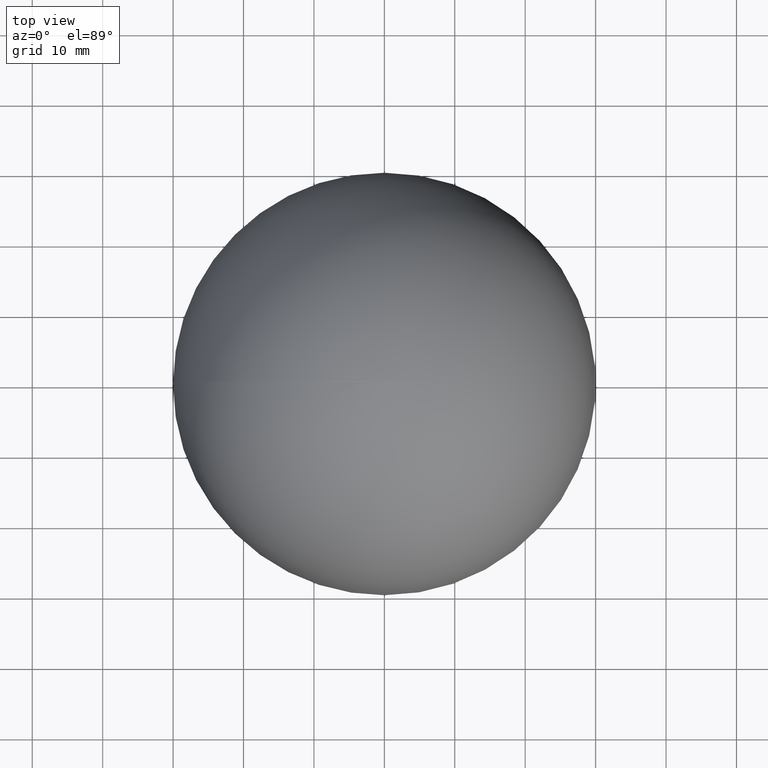
[diagram: clean part render]
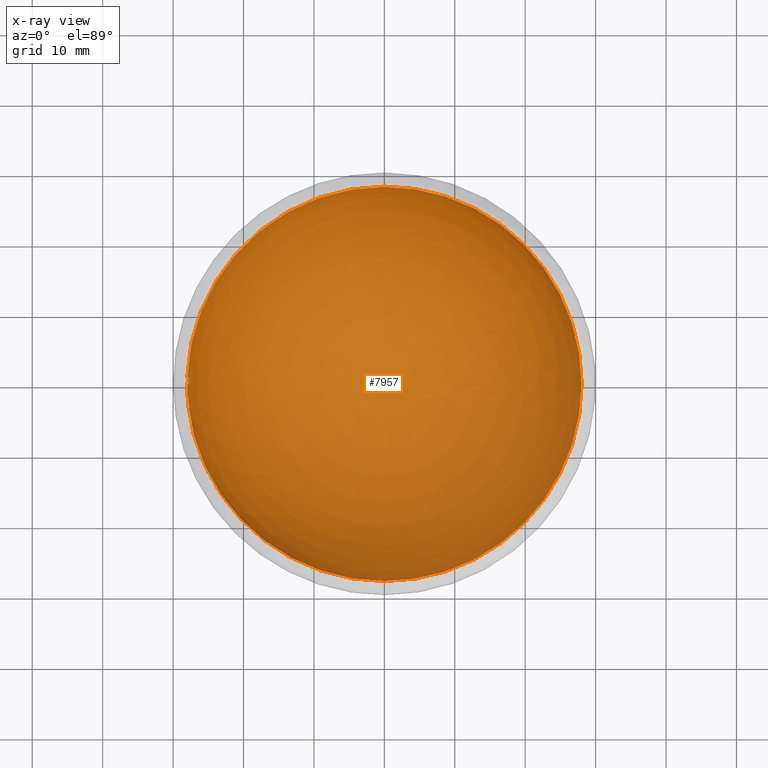
[diagram: x-ray — body ghosted, one internal face saturated and labeled with its STEP entity id]
A machine part, top view, then the same camera in x-ray: the body is ghosted and one INTERNAL B-rep face — a face not visible from any outside direction — is saturated and labeled: STEP entity #7957.
In plain terms, the highlighted spherical surface has radius 28 mm.
Its self-contained STEP definition (entity closure, byte-faithful):
#3 = VERTEX_POINT ( 'NONE', #1817 ) ;
#8 = AXIS2_PLACEMENT_3D ( 'NONE', #7465, #6032, #4557 ) ;
#17 = CARTESIAN_POINT ( 'NONE',  ( -27.98301526799129500, 0.5236545138888890600, -0.8225827991452993000 ) ) ;
#22 = VERTEX_POINT ( 'NONE', #8419 ) ;
#36 = CARTESIAN_POINT ( 'NONE',  ( -27.83281325292811200, 0.9809491652141896200, -2.893627076949185200 ) ) ;
#39 = CARTESIAN_POINT ( 'NONE',  ( -27.88773253742887400, 0.4364795784267217500, -2.468079928915686500 ) ) ;
#42 = DIRECTION ( 'NONE',  ( 1.000000000000000000, 0.0000000000000000000, 0.0000000000000000000 ) ) ;
#62 = CARTESIAN_POINT ( 'NONE',  ( -27.98765403597821700, 0.8157756148590648000, -0.1770648685105181100 ) ) ;
#64 = EDGE_CURVE ( 'NONE', #7119, #6877, #3591, .T. ) ;
#96 = EDGE_CURVE ( 'NONE', #8051, #2393, #2891, .T. ) ;
#104 = ORIENTED_EDGE ( 'NONE', *, *, #2712, .F. ) ;
#108 = CARTESIAN_POINT ( 'NONE',  ( -27.86300096885018000, -2.763888888888889300, -0.1187232905982907000 ) ) ;
#117 = CARTESIAN_POINT ( 'NONE',  ( -27.97663182921131400, 0.2314858203202628000, -1.121995456956395000 ) ) ;
#156 = EDGE_CURVE ( 'NONE', #950, #313, #5104, .T. ) ;
#175 = CARTESIAN_POINT ( 'NONE',  ( -27.94095386686970900, 0.04433198836477101500, -1.817288271138370900 ) ) ;
#197 = DIRECTION ( 'NONE',  ( 0.0000000000000000000, 1.000000000000000000, 0.0000000000000000000 ) ) ;
#202 = CARTESIAN_POINT ( 'NONE',  ( 0.0000000000000000000, 0.0000000000000000000, -3.587139423076925100 ) ) ;
#238 = CARTESIAN_POINT ( 'NONE',  ( -27.94754053397813500, 0.001795569622103341200, -1.713596910892715200 ) ) ;
#241 = EDGE_LOOP ( 'NONE', ( #2298, #655, #6456, #5061, #5588, #9407, #9239, #9299, #1338 ) ) ;
#245 = VERTEX_POINT ( 'NONE', #7802 ) ;
#251 = ORIENTED_EDGE ( 'NONE', *, *, #4241, .F. ) ;
#263 = AXIS2_PLACEMENT_3D ( 'NONE', #3029, #8163, #2907 ) ;
#267 = CARTESIAN_POINT ( 'NONE',  ( -27.94532312439321600, 0.01298964225473220300, -1.749328933791181000 ) ) ;
#268 = CIRCLE ( 'NONE', #9029, 27.96286241130576400 ) ;
#279 = VERTEX_POINT ( 'NONE', #8760 ) ;
#289 = CARTESIAN_POINT ( 'NONE',  ( -27.84471396092746100, 0.8649839743589744500, -2.814908019497862800 ) ) ;
#290 = CARTESIAN_POINT ( 'NONE',  ( 0.0000000000000000000, 0.0000000000000000000, -0.04240117521367545200 ) ) ;
#293 = EDGE_CURVE ( 'NONE', #3477, #8714, #6344, .T. ) ;
#297 = CARTESIAN_POINT ( 'NONE',  ( -27.92551837932508000, 0.9194127188218941300, -1.822506531191502300 ) ) ;
#298 = DIRECTION ( 'NONE',  ( 0.0000000000000000000, 0.0000000000000000000, 1.000000000000000000 ) ) ;
#313 = VERTEX_POINT ( 'NONE', #4344 ) ;
#316 = CARTESIAN_POINT ( 'NONE',  ( -27.84853343682525700, 0.8642763198105374300, -2.777343700067702600 ) ) ;
#365 = VERTEX_POINT ( 'NONE', #6663 ) ;
#385 = CARTESIAN_POINT ( 'NONE',  ( -27.98119093668377400, 0.7922874670313856400, -0.6533153725942044700 ) ) ;
#395 = DIRECTION ( 'NONE',  ( -0.0000000000000000000, -0.0000000000000000000, 1.000000000000000000 ) ) ;
#401 = CARTESIAN_POINT ( 'NONE',  ( -27.99320002359715100, 0.5945608960487912500, -0.1739368985575612800 ) ) ;
#410 = EDGE_CURVE ( 'NONE', #7949, #8186, #6102, .T. ) ;
#416 = ORIENTED_EDGE ( 'NONE', *, *, #4818, .F. ) ;
#424 = CARTESIAN_POINT ( 'NONE',  ( -27.99565221179852500, 0.4915886251335469500, -0.04240117521367545200 ) ) ;
#432 = DIRECTION ( 'NONE',  ( 0.0000000000000000000, 0.0000000000000000000, 1.000000000000000000 ) ) ;
#436 = CARTESIAN_POINT ( 'NONE',  ( -27.97269130109805600, 0.6188099133913010900, -1.072346624456380600 ) ) ;
#441 = ORIENTED_EDGE ( 'NONE', *, *, #3940, .F. ) ;
#447 = CARTESIAN_POINT ( 'NONE',  ( -27.83369591434911400, 0.8477637574038808800, -2.927027464560174200 ) ) ;
#459 = VERTEX_POINT ( 'NONE', #8984 ) ;
#467 = CARTESIAN_POINT ( 'NONE',  ( -27.82421451976445300, 0.6016467007935625300, -3.074320555195711300 ) ) ;
#472 = VERTEX_POINT ( 'NONE', #7571 ) ;
#490 = DIRECTION ( 'NONE',  ( 0.0000000000000000000, 0.0000000000000000000, -1.000000000000000000 ) ) ;
#493 = CARTESIAN_POINT ( 'NONE',  ( -27.74823696947244000, 0.7418444020883096000, -3.672388548887368700 ) ) ;
#503 = CARTESIAN_POINT ( 'NONE',  ( -27.86426548939614300, 0.9177327202112949300, -2.596490251406212900 ) ) ;
#516 = CARTESIAN_POINT ( 'NONE',  ( -27.65987472234697700, 0.5518477247957168700, -4.316268716400806200 ) ) ;
#522 = EDGE_CURVE ( 'NONE', #3712, #6942, #5886, .T. ) ;
#532 = CARTESIAN_POINT ( 'NONE',  ( -27.95400928423087800, 0.9231300864117765200, -1.313619246148769900 ) ) ;
#539 = ORIENTED_EDGE ( 'NONE', *, *, #5671, .F. ) ;
#542 = DIRECTION ( 'NONE',  ( 0.0000000000000000000, -0.7209840770893444200, -0.6929516293246060800 ) ) ;
#550 = VERTEX_POINT ( 'NONE', #855 ) ;
#564 = CARTESIAN_POINT ( 'NONE',  ( -27.92027654368105200, 0.7878668369391025300, -1.958934294871794300 ) ) ;
#570 = ORIENTED_EDGE ( 'NONE', *, *, #6213, .F. ) ;
#572 = CARTESIAN_POINT ( 'NONE',  ( -27.82727914059525900, 0.8019445641072952000, -3.000042685547295000 ) ) ;
#587 = CARTESIAN_POINT ( 'NONE',  ( -27.87978415485128600, 0.7923719618055555800, -2.467748397435897400 ) ) ;
#598 = B_SPLINE_CURVE_WITH_KNOTS ( 'NONE', 3,
 ( #9474, #5097, #2016, #6392, #9376, #503, #7800, #1956, #9399, #4225 ),
 .UNSPECIFIED., .F., .F.,
 ( 4, 2, 2, 2, 4 ),
 ( 0.0000000000000000000, 0.0001076444876032475200, 0.0002152889752064950400, 0.0003229334628097425400, 0.0004305779504129900800 ),
 .UNSPECIFIED. ) ;
#618 = CIRCLE ( 'NONE', #4312, 27.99999999999999600 ) ;
#627 = CARTESIAN_POINT ( 'NONE',  ( -27.76752582003961900, 0.9667467948717949300, -3.468416132478634200 ) ) ;
#649 = CARTESIAN_POINT ( 'NONE',  ( -27.73716084332069800, 0.9178221434335707100, -3.716020413318424700 ) ) ;
#655 = ORIENTED_EDGE ( 'NONE', *, *, #6847, .F. ) ;
#658 = EDGE_CURVE ( 'NONE', #9452, #7924, #7600, .T. ) ;
#663 = DIRECTION ( 'NONE',  ( 0.0000000000000000000, 0.0000000000000000000, -1.000000000000000000 ) ) ;
#691 = DIRECTION ( 'NONE',  ( 0.0000000000000000000, 0.0000000000000000000, -1.000000000000000000 ) ) ;
#706 = CARTESIAN_POINT ( 'NONE',  ( -27.75141475288315700, -2.566458416800213800, -2.696714743589743600 ) ) ;
#711 = VERTEX_POINT ( 'NONE', #2045 ) ;
#712 = B_SPLINE_CURVE_WITH_KNOTS ( 'NONE', 3,
 ( #8174, #39, #6764, #4539 ),
 .UNSPECIFIED., .F., .F.,
 ( 4, 4 ),
 ( 0.0000000000000000000, 0.0002608253990823754500 ),
 .UNSPECIFIED. ) ;
#716 = DIRECTION ( 'NONE',  ( -0.0000000000000000000, -1.000000000000000000, 0.0000000000000000000 ) ) ;
#717 = CARTESIAN_POINT ( 'NONE',  ( -27.70871873161083700, 0.8649839743589744500, -3.934299045138890600 ) ) ;
#725 = CARTESIAN_POINT ( 'NONE',  ( -27.95627634174661900, -0.01696047008547008400, -1.564073350694444200 ) ) ;
#735 = FACE_BOUND ( 'NONE', #5336, .T. ) ;
#737 = CARTESIAN_POINT ( 'NONE',  ( 0.0000000000000000000, -3.204861111111111600, 0.0000000000000000000 ) ) ;
#752 = CIRCLE ( 'NONE', #7901, 27.81598219115204200 ) ;
#767 = EDGE_CURVE ( 'NONE', #6670, #4029, #5193, .T. ) ;
#779 = DIRECTION ( 'NONE',  ( 0.0000000000000000000, 0.7383164886267646900, 0.6744544184908601900 ) ) ;
#780 = AXIS2_PLACEMENT_3D ( 'NONE', #2603, #9231, #2707 ) ;
#799 = CARTESIAN_POINT ( 'NONE',  ( 0.0000000000000000000, 0.0000000000000000000, -0.1187232905982907000 ) ) ;
#805 = CARTESIAN_POINT ( 'NONE',  ( -27.81148882206605700, 0.5517525563171135100, -3.196877970541308400 ) ) ;
#810 = AXIS2_PLACEMENT_3D ( 'NONE', #799, #1538, #6688 ) ;
#816 = CARTESIAN_POINT ( 'NONE',  ( -27.83026972957842900, 0.0000000000000000000, -3.078325320512820300 ) ) ;
#825 = EDGE_CURVE ( 'NONE', #7874, #365, #9211, .T. ) ;
#826 = CARTESIAN_POINT ( 'NONE',  ( 0.0000000000000000000, 0.0000000000000000000, -3.587139423076925100 ) ) ;
#846 = CARTESIAN_POINT ( 'NONE',  ( -27.70871873161083700, 0.8649839743589744500, -3.934299045138890600 ) ) ;
#851 = CARTESIAN_POINT ( 'NONE',  ( -27.97547187332211700, 0.1768024278414347400, -1.160212856903673200 ) ) ;
#855 = CARTESIAN_POINT ( 'NONE',  ( -27.82364024840124000, 0.6747087005876067900, -3.064279931223290500 ) ) ;
#862 = CARTESIAN_POINT ( 'NONE',  ( -27.88104291060792400, 0.6450753267865054800, -2.496545591081296100 ) ) ;
#885 = ORIENTED_EDGE ( 'NONE', *, *, #767, .F. ) ;
#905 = ORIENTED_EDGE ( 'NONE', *, *, #6930, .F. ) ;
#923 = VERTEX_POINT ( 'NONE', #108 ) ;
#924 = CARTESIAN_POINT ( 'NONE',  ( -27.67924679218606000, 0.4914590625159748800, -4.197512684919990600 ) ) ;
#932 = CARTESIAN_POINT ( 'NONE',  ( -27.98091938762018000, 0.6307840337388784800, -0.8204531919041608800 ) ) ;
#948 = ORIENTED_EDGE ( 'NONE', *, *, #9359, .F. ) ;
#950 = VERTEX_POINT ( 'NONE', #8949 ) ;
#976 = ORIENTED_EDGE ( 'NONE', *, *, #7094, .F. ) ;
#981 = CIRCLE ( 'NONE', #4413, 27.76927134008753800 ) ;
#994 = CARTESIAN_POINT ( 'NONE',  ( 0.0000000000000000000, -3.069177350427351000, 0.0000000000000000000 ) ) ;
#996 = CARTESIAN_POINT ( 'NONE',  ( -27.97833088636537400, 0.9837072649572650200, -0.4952987279647437200 ) ) ;
#1001 = ORIENTED_EDGE ( 'NONE', *, *, #8233, .F. ) ;
#1006 = CIRCLE ( 'NONE', #6061, 27.87637956772859100 ) ;
#1016 = CARTESIAN_POINT ( 'NONE',  ( -27.76022417157580000, 0.6089868790064102400, -3.605424929887822500 ) ) ;
#1025 = DIRECTION ( 'NONE',  ( 1.000000000000000000, 0.0000000000000000000, 0.0000000000000000000 ) ) ;
#1035 = VERTEX_POINT ( 'NONE', #4570 ) ;
#1040 = DIRECTION ( 'NONE',  ( -0.0000000000000000000, -0.0000000000000000000, 1.000000000000000000 ) ) ;
#1043 = CARTESIAN_POINT ( 'NONE',  ( -27.92876180046844000, 0.9523742643052505200, -1.754615089178756400 ) ) ;
#1045 = ORIENTED_EDGE ( 'NONE', *, *, #3424, .F. ) ;
#1078 = CARTESIAN_POINT ( 'NONE',  ( -27.92106040432834400, 0.8180596838819372800, -1.935618786545346000 ) ) ;
#1086 = CARTESIAN_POINT ( 'NONE',  ( -27.91558775669203400, -1.881944444444444900, -1.085470085470086900 ) ) ;
#1090 = CARTESIAN_POINT ( 'NONE',  ( -27.86155585627874800, -2.560363247863248300, -1.085470085470086900 ) ) ;
#1105 = CIRCLE ( 'NONE', #8884, 27.99999999999999600 ) ;
#1118 = ORIENTED_EDGE ( 'NONE', *, *, #1144, .F. ) ;
#1120 = EDGE_LOOP ( 'NONE', ( #2643, #8178, #8171, #5909, #885, #416, #1160, #8631, #5451, #1118, #1975, #6121 ) ) ;
#1123 = AXIS2_PLACEMENT_3D ( 'NONE', #6988, #6188, #6958 ) ;
#1124 = CIRCLE ( 'NONE', #4586, 27.88269248187826900 ) ;
#1127 = B_SPLINE_CURVE_WITH_KNOTS ( 'NONE', 3,
 ( #2520, #4815, #6887, #8429, #385, #5458, #3223, #7685, #1764, #6282 ),
 .UNSPECIFIED., .F., .F.,
 ( 4, 2, 2, 2, 4 ),
 ( 0.0000000000000000000, 0.0001174815120863758600, 0.0002349630241727517200, 0.0003524445362591275900, 0.0004699260483455034500 ),
 .UNSPECIFIED. ) ;
#1128 = CARTESIAN_POINT ( 'NONE',  ( -27.72988974907715900, 0.8341190166978051900, -3.789308806686128700 ) ) ;
#1144 = EDGE_CURVE ( 'NONE', #2447, #3477, #5425, .T. ) ;
#1154 = DIRECTION ( 'NONE',  ( -1.000000000000000000, -1.660893644839234400E-013, 0.0000000000000000000 ) ) ;
#1157 = CARTESIAN_POINT ( 'NONE',  ( 0.0000000000000000000, 0.1939288023721395500, -0.2017739372885172500 ) ) ;
#1160 = ORIENTED_EDGE ( 'NONE', *, *, #8827, .F. ) ;
#1168 = VERTEX_POINT ( 'NONE', #424 ) ;
#1171 = ORIENTED_EDGE ( 'NONE', *, *, #2437, .F. ) ;
#1173 = CARTESIAN_POINT ( 'NONE',  ( -27.98261122266000500, 0.8649839743589744500, -0.4746281550480772000 ) ) ;
#1186 = AXIS2_PLACEMENT_3D ( 'NONE', #6624, #716, #7321 ) ;
#1188 = B_SPLINE_CURVE_WITH_KNOTS ( 'NONE', 3,
 ( #6960, #5363, #932, #1667, #6131, #6165, #1698, #9072, #6856, #3188, #9110, #996 ),
 .UNSPECIFIED., .F., .F.,
 ( 4, 2, 2, 2, 2, 4 ),
 ( 0.0000000000000000000, 0.0001605848618436695300, 0.0003211697236873390600, 0.0004817545855310085400, 0.0005620470164528431900, 0.0006423394473746777900 ),
 .UNSPECIFIED. ) ;
#1190 = CARTESIAN_POINT ( 'NONE',  ( -27.82402435624224800, 0.7302557287935952400, -3.048151170434246100 ) ) ;
#1197 = CARTESIAN_POINT ( 'NONE',  ( -27.76022417157580000, 0.6089868790064102400, -3.605424929887822500 ) ) ;
#1199 = EDGE_CURVE ( 'NONE', #6367, #7119, #4972, .T. ) ;
#1202 = CIRCLE ( 'NONE', #3806, 27.97895199419645000 ) ;
#1208 = CARTESIAN_POINT ( 'NONE',  ( -27.93876115828547700, 0.9837072649572650200, -1.567783453525640700 ) ) ;
#1219 = CIRCLE ( 'NONE', #6927, 27.99999999999999600 ) ;
#1236 = AXIS2_PLACEMENT_3D ( 'NONE', #5667, #4215, #1318 ) ;
#1238 = CARTESIAN_POINT ( 'NONE',  ( -27.73507195068611300, -3.204861111111111600, -2.120058760683762900 ) ) ;
#1244 = CARTESIAN_POINT ( 'NONE',  ( -1.714505518806283200E-015, -27.99999999999999600, 0.0000000000000000000 ) ) ;
#1256 = AXIS2_PLACEMENT_3D ( 'NONE', #3647, #4393, #7405 ) ;
#1266 = VERTEX_POINT ( 'NONE', #9306 ) ;
#1268 = CARTESIAN_POINT ( 'NONE',  ( 0.0000000000000000000, -1.881944444444444900, 0.0000000000000000000 ) ) ;
#1284 = ORIENTED_EDGE ( 'NONE', *, *, #5034, .F. ) ;
#1285 = CARTESIAN_POINT ( 'NONE',  ( -27.83123641372054300, 0.8361823293791175200, -2.953627323012372900 ) ) ;
#1292 = DIRECTION ( 'NONE',  ( 0.0000000000000000000, 0.0000000000000000000, 1.000000000000000000 ) ) ;
#1293 = CARTESIAN_POINT ( 'NONE',  ( -27.66088575222641700, 0.4937086838942307800, -4.316439636752138900 ) ) ;
#1298 = VERTEX_POINT ( 'NONE', #706 ) ;
#1306 = B_SPLINE_CURVE_WITH_KNOTS ( 'NONE', 3,
 ( #9488, #6038, #3093, #8974 ),
 .UNSPECIFIED., .F., .F.,
 ( 4, 4 ),
 ( 0.0000000000000000000, 0.0002608522770285832400 ),
 .UNSPECIFIED. ) ;
#1310 = AXIS2_PLACEMENT_3D ( 'NONE', #8795, #2206, #7362 ) ;
#1312 = CARTESIAN_POINT ( 'NONE',  ( -27.82378601622048800, 0.7026408723302566300, -3.056806113172209700 ) ) ;
#1318 = DIRECTION ( 'NONE',  ( 0.0000000000000000000, 0.0000000000000000000, 1.000000000000000000 ) ) ;
#1328 = CARTESIAN_POINT ( 'NONE',  ( -27.72750295777450800, 0.9509892629037136600, -3.779218966382809500 ) ) ;
#1330 = CARTESIAN_POINT ( 'NONE',  ( 0.0000000000000000000, 0.0000000000000000000, 0.0000000000000000000 ) ) ;
#1338 = ORIENTED_EDGE ( 'NONE', *, *, #5230, .F. ) ;
#1359 = CARTESIAN_POINT ( 'NONE',  ( -27.75796421630288800, 0.7923719618055555800, -3.587139423076925100 ) ) ;
#1383 = CARTESIAN_POINT ( 'NONE',  ( -27.98959350266828500, 0.7502357939369659300, -0.1407189002403848300 ) ) ;
#1406 = ORIENTED_EDGE ( 'NONE', *, *, #3826, .F. ) ;
#1412 = CARTESIAN_POINT ( 'NONE',  ( 0.0000000000000000000, 0.0000000000000000000, 0.0000000000000000000 ) ) ;
#1414 = DIRECTION ( 'NONE',  ( 1.000000000000000000, 0.0000000000000000000, 0.0000000000000000000 ) ) ;
#1415 = CIRCLE ( 'NONE', #5835, 27.99953640520708100 ) ;
#1430 = AXIS2_PLACEMENT_3D ( 'NONE', #1473, #8037, #2190 ) ;
#1438 = CARTESIAN_POINT ( 'NONE',  ( -27.83867478999513200, 0.9837072649572650200, -2.835578592414529800 ) ) ;
#1440 = CARTESIAN_POINT ( 'NONE',  ( -27.72234741973139500, 0.9635668739818933300, -3.813698242310339400 ) ) ;
#1449 = CIRCLE ( 'NONE', #3086, 27.98791449069669900 ) ;
#1450 = CARTESIAN_POINT ( 'NONE',  ( -27.87369161194836300, -2.424679487179487700, -1.085470085470086900 ) ) ;
#1464 = CARTESIAN_POINT ( 'NONE',  ( -27.98942125156300500, 0.7696089932902221400, -3.414389810382084700E-015 ) ) ;
#1473 = CARTESIAN_POINT ( 'NONE',  ( 0.0000000000000000000, 0.0000000000000000000, 0.0000000000000000000 ) ) ;
#1475 = CARTESIAN_POINT ( 'NONE',  ( -27.81050899972835900, 0.6096511902486198000, -3.194883322645997400 ) ) ;
#1481 = AXIS2_PLACEMENT_3D ( 'NONE', #7721, #1966, #1154 ) ;
#1492 = CARTESIAN_POINT ( 'NONE',  ( -27.96348974173520900, -0.005262339959990185900, -1.430917054396099600 ) ) ;
#1498 = EDGE_CURVE ( 'NONE', #4536, #8542, #4960, .T. ) ;
#1518 = CARTESIAN_POINT ( 'NONE',  ( 0.0000000000000000000, 0.0000000000000000000, -2.696714743589743600 ) ) ;
#1538 = DIRECTION ( 'NONE',  ( -0.0000000000000000000, -0.0000000000000000000, -1.000000000000000000 ) ) ;
#1542 = CARTESIAN_POINT ( 'NONE',  ( -27.80968104889675300, 0.7244394055843865800, -3.178079978435794900 ) ) ;
#1550 = CARTESIAN_POINT ( 'NONE',  ( 0.0000000000000000000, -1.881944444444444900, 0.0000000000000000000 ) ) ;
#1563 = CARTESIAN_POINT ( 'NONE',  ( -27.75796421630288800, 0.7923719618055555800, -3.587139423076925100 ) ) ;
#1575 = EDGE_CURVE ( 'NONE', #8986, #950, #4985, .T. ) ;
#1583 = B_SPLINE_CURVE_WITH_KNOTS ( 'NONE', 3,
 ( #2959, #8836, #3028, #5355, #3906, #8291, #1627, #3119, #924, #7554 ),
 .UNSPECIFIED., .F., .F.,
 ( 4, 3, 3, 4 ),
 ( 0.0000000000000000000, 5.535404666591921500E-005, 0.0001105448671997685100, 0.0002205455227492402100 ),
 .UNSPECIFIED. ) ;
#1610 = ORIENTED_EDGE ( 'NONE', *, *, #96, .F. ) ;
#1612 = CARTESIAN_POINT ( 'NONE',  ( -27.93877753086364600, 0.06463336736043111300, -1.849848672743989300 ) ) ;
#1627 = CARTESIAN_POINT ( 'NONE',  ( -27.67808514211108300, 0.5648563152707882800, -4.195776472733984800 ) ) ;
#1634 = CARTESIAN_POINT ( 'NONE',  ( -27.84683357286572700, -1.881944444444444900, -2.238782051282053300 ) ) ;
#1636 = CARTESIAN_POINT ( 'NONE',  ( -27.87354499876885700, 0.7416305452758871200, -2.552819933853413700 ) ) ;
#1649 = CARTESIAN_POINT ( 'NONE',  ( 0.0000000000000000000, -3.204861111111111600, 0.0000000000000000000 ) ) ;
#1667 = CARTESIAN_POINT ( 'NONE',  ( -27.97876248106501900, 0.7370490412865773300, -0.8052890491692771300 ) ) ;
#1680 = EDGE_CURVE ( 'NONE', #365, #8051, #6655, .T. ) ;
#1688 = CIRCLE ( 'NONE', #7163, 27.83128007102123300 ) ;
#1698 = CARTESIAN_POINT ( 'NONE',  ( -27.97622131795374000, 0.9205884377970318100, -0.6974488541430798900 ) ) ;
#1715 = CARTESIAN_POINT ( 'NONE',  ( -27.78450569564884600, -3.204861111111111600, -1.322916666666668700 ) ) ;
#1724 = EDGE_CURVE ( 'NONE', #5063, #7676, #1958, .T. ) ;
#1735 = CARTESIAN_POINT ( 'NONE',  ( 0.0000000000000000000, 0.0000000000000000000, -1.322916666666668700 ) ) ;
#1744 = EDGE_CURVE ( 'NONE', #1298, #2534, #2989, .T. ) ;
#1746 = CARTESIAN_POINT ( 'NONE',  ( -27.76927134008753800, 0.0000000000000000000, -3.587139423076925100 ) ) ;
#1764 = CARTESIAN_POINT ( 'NONE',  ( -27.98550513896337200, 0.5637197524944946900, -0.7037654050357923200 ) ) ;
#1766 = CARTESIAN_POINT ( 'NONE',  ( -27.93462407282075000, -1.881944444444444900, -0.3392094017094030600 ) ) ;
#1777 = DIRECTION ( 'NONE',  ( 0.0000000000000000000, 1.000000000000000000, 0.0000000000000000000 ) ) ;
#1798 = EDGE_CURVE ( 'NONE', #7924, #2447, #2293, .T. ) ;
#1800 = VERTEX_POINT ( 'NONE', #5702 ) ;
#1817 = CARTESIAN_POINT ( 'NONE',  ( -27.78434972303583800, 0.0000000000000000000, -3.468416132478634200 ) ) ;
#1835 = DIRECTION ( 'NONE',  ( -0.0000000000000000000, -1.000000000000000000, 0.0000000000000000000 ) ) ;
#1837 = VERTEX_POINT ( 'NONE', #1293 ) ;
#1850 = DIRECTION ( 'NONE',  ( -0.0000000000000000000, -0.0000000000000000000, -1.000000000000000000 ) ) ;
#1858 = ORIENTED_EDGE ( 'NONE', *, *, #4917, .F. ) ;
#1893 = CARTESIAN_POINT ( 'NONE',  ( 0.0000000000000000000, 0.0000000000000000000, 0.0000000000000000000 ) ) ;
#1895 = B_SPLINE_CURVE_WITH_KNOTS ( 'NONE', 3,
 ( #2401, #9087, #6049, #238, #267, #175, #1612, #5370, #7609, #3890 ),
 .UNSPECIFIED., .F., .F.,
 ( 4, 2, 2, 2, 4 ),
 ( 0.0000000000000000000, 0.0001131709634889850200, 0.0002263419269779700400, 0.0003395128904669550900, 0.0004526838539559400900 ),
 .UNSPECIFIED. ) ;
#1903 = CARTESIAN_POINT ( 'NONE',  ( -27.71949972297608200, 0.8591885607953543300, -3.859084267976999000 ) ) ;
#1904 = AXIS2_PLACEMENT_3D ( 'NONE', #7987, #4296, #9405 ) ;
#1912 = CARTESIAN_POINT ( 'NONE',  ( -27.98362305014387300, 0.8613566928083791200, -0.4191239638971276400 ) ) ;
#1918 = AXIS2_PLACEMENT_3D ( 'NONE', #1412, #7322, #6596 ) ;
#1924 = DIRECTION ( 'NONE',  ( 1.224646799147353200E-016, -1.499759782661853000E-032, -1.000000000000000000 ) ) ;
#1940 = DIRECTION ( 'NONE',  ( 0.0000000000000000000, 1.000000000000000000, 0.0000000000000000000 ) ) ;
#1956 = CARTESIAN_POINT ( 'NONE',  ( -27.87405926627592500, 0.8484961469504642700, -2.513602559707657700 ) ) ;
#1958 = CIRCLE ( 'NONE', #3776, 27.83026972957842900 ) ;
#1963 = VERTEX_POINT ( 'NONE', #7341 ) ;
#1966 = DIRECTION ( 'NONE',  ( -0.0000000000000000000, -0.0000000000000000000, 1.000000000000000000 ) ) ;
#1973 = CARTESIAN_POINT ( 'NONE',  ( -27.68587740154077200, 0.9685167419949288800, -4.068784000945499600 ) ) ;
#1975 = ORIENTED_EDGE ( 'NONE', *, *, #1798, .F. ) ;
#2001 = CARTESIAN_POINT ( 'NONE',  ( -27.65978917331709800, 0.7821417767004919000, -4.281085183635601000 ) ) ;
#2003 = CARTESIAN_POINT ( 'NONE',  ( -27.75806172764924500, 0.6451678068734038000, -3.615963553921667900 ) ) ;
#2011 = FACE_OUTER_BOUND ( 'NONE', #3108, .T. ) ;
#2016 = CARTESIAN_POINT ( 'NONE',  ( -27.84605133830807600, 0.9799510126325262600, -2.763767849007426200 ) ) ;
#2025 = CARTESIAN_POINT ( 'NONE',  ( -27.82584491711135400, 0.7799820746340523400, -3.019074854344479900 ) ) ;
#2029 = CIRCLE ( 'NONE', #4471, 27.93668350230614900 ) ;
#2040 = EDGE_CURVE ( 'NONE', #8489, #9340, #3690, .T. ) ;
#2042 = CIRCLE ( 'NONE', #8, 27.93139052085260900 ) ;
#2045 = CARTESIAN_POINT ( 'NONE',  ( -27.81010437026753100, -3.069177350427351000, -1.085470085470086900 ) ) ;
#2053 = CARTESIAN_POINT ( 'NONE',  ( -27.82364024840124000, 0.6747087005876067900, -3.064279931223290500 ) ) ;
#2059 = VERTEX_POINT ( 'NONE', #5238 ) ;
#2078 = CARTESIAN_POINT ( 'NONE',  ( 0.0000000000000000000, 0.0000000000000000000, -0.4579326923076936800 ) ) ;
#2124 = CARTESIAN_POINT ( 'NONE',  ( -27.98249655771714500, 0.9385973749785474500, -0.3166950374423055400 ) ) ;
#2126 = B_SPLINE_CURVE_WITH_KNOTS ( 'NONE', 3,
 ( #5621, #8620, #3519, #447, #1285, #572, #2025, #1190, #1312, #2053 ),
 .UNSPECIFIED., .F., .F.,
 ( 4, 2, 2, 2, 4 ),
 ( 0.0000000000000000000, 8.547560599127520300E-005, 0.0001709512119825504100, 0.0002564268179738256400, 0.0003419024239651008100 ),
 .UNSPECIFIED. ) ;
#2162 = AXIS2_PLACEMENT_3D ( 'NONE', #9227, #7771, #2573 ) ;
#2168 = ORIENTED_EDGE ( 'NONE', *, *, #6896, .F. ) ;
#2174 = CARTESIAN_POINT ( 'NONE',  ( -27.99115184825783200, 0.0000000000000000000, -0.7038595085470088500 ) ) ;
#2182 = CARTESIAN_POINT ( 'NONE',  ( -27.76707131244454600, 0.3495446881677350400, -3.587139423076925100 ) ) ;
#2184 = CARTESIAN_POINT ( 'NONE',  ( 0.0000000000000000000, -2.628205128205128600, 0.0000000000000000000 ) ) ;
#2190 = DIRECTION ( 'NONE',  ( 1.000000000000000000, -1.224646799147349300E-016, 0.0000000000000000000 ) ) ;
#2198 = EDGE_LOOP ( 'NONE', ( #6568, #9093, #905, #6559, #5091, #2168, #1858, #1284, #7460, #3912, #9515, #4892, #5513, #570 ) ) ;
#2200 = ORIENTED_EDGE ( 'NONE', *, *, #1199, .F. ) ;
#2206 = DIRECTION ( 'NONE',  ( -0.0000000000000000000, -0.0000000000000000000, 1.000000000000000000 ) ) ;
#2225 = AXIS2_PLACEMENT_3D ( 'NONE', #5418, #4006, #3779 ) ;
#2227 = CARTESIAN_POINT ( 'NONE',  ( -27.89104189245988900, 0.0000000000000000000, -2.467748397435897400 ) ) ;
#2231 = DIRECTION ( 'NONE',  ( -0.0000000000000000000, -0.0000000000000000000, -1.000000000000000000 ) ) ;
#2234 = FACE_BOUND ( 'NONE', #1120, .T. ) ;
#2240 = EDGE_CURVE ( 'NONE', #6888, #5555, #3457, .T. ) ;
#2242 = CARTESIAN_POINT ( 'NONE',  ( 0.0000000000000000000, 0.9667467948717949300, 0.0000000000000000000 ) ) ;
#2247 = CARTESIAN_POINT ( 'NONE',  ( -27.90534315504971700, -1.881944444444444900, -1.322916666666668700 ) ) ;
#2269 = CARTESIAN_POINT ( 'NONE',  ( 0.0000000000000000000, 0.0000000000000000000, -3.197048611111110700 ) ) ;
#2284 = CARTESIAN_POINT ( 'NONE',  ( -27.99174082758861800, 0.6808838204003087000, -0.03300814386857044100 ) ) ;
#2293 = CIRCLE ( 'NONE', #3967, 27.96286241130576400 ) ;
#2298 = ORIENTED_EDGE ( 'NONE', *, *, #5553, .F. ) ;
#2319 = VERTEX_POINT ( 'NONE', #17 ) ;
#2350 = ORIENTED_EDGE ( 'NONE', *, *, #9033, .F. ) ;
#2371 = AXIS2_PLACEMENT_3D ( 'NONE', #3992, #8989, #4736 ) ;
#2393 = VERTEX_POINT ( 'NONE', #9114 ) ;
#2401 = CARTESIAN_POINT ( 'NONE',  ( -27.95627634174661900, -0.01696047008547008400, -1.564073350694444200 ) ) ;
#2403 = DIRECTION ( 'NONE',  ( 0.0000000000000000000, 0.0000000000000000000, 1.000000000000000000 ) ) ;
#2437 = EDGE_CURVE ( 'NONE', #2983, #1298, #5408, .T. ) ;
#2447 = VERTEX_POINT ( 'NONE', #7693 ) ;
#2464 = AXIS2_PLACEMENT_3D ( 'NONE', #7985, #8729, #5737 ) ;
#2483 = CARTESIAN_POINT ( 'NONE',  ( 0.0000000000000000000, 0.0000000000000000000, -1.085470085470086900 ) ) ;
#2498 = CARTESIAN_POINT ( 'NONE',  ( 0.0000000000000000000, -2.424679487179487700, 0.0000000000000000000 ) ) ;
#2507 = EDGE_CURVE ( 'NONE', #1168, #3366, #6100, .T. ) ;
#2513 = DIRECTION ( 'NONE',  ( -0.0000000000000000000, -0.0000000000000000000, -1.000000000000000000 ) ) ;
#2520 = CARTESIAN_POINT ( 'NONE',  ( -27.98261122266000500, 0.8649839743589744500, -0.4746281550480772000 ) ) ;
#2529 = DIRECTION ( 'NONE',  ( 0.0000000000000000000, 0.0000000000000000000, -1.000000000000000000 ) ) ;
#2534 = VERTEX_POINT ( 'NONE', #8433 ) ;
#2535 = CARTESIAN_POINT ( 'NONE',  ( -27.93452348460072800, 0.9804394691523448100, -1.643960346357847400 ) ) ;
#2567 = EDGE_CURVE ( 'NONE', #6942, #9452, #4154, .T. ) ;
#2573 = DIRECTION ( 'NONE',  ( 0.0000000000000000000, 0.0000000000000000000, 1.000000000000000000 ) ) ;
#2576 = AXIS2_PLACEMENT_3D ( 'NONE', #5888, #8704, #691 ) ;
#2603 = CARTESIAN_POINT ( 'NONE',  ( 0.0000000000000000000, 0.0000000000000000000, -2.349025106837606500 ) ) ;
#2636 = CARTESIAN_POINT ( 'NONE',  ( 0.0000000000000000000, 0.0000000000000000000, -2.577991452991453200 ) ) ;
#2643 = ORIENTED_EDGE ( 'NONE', *, *, #2567, .F. ) ;
#2683 = DIRECTION ( 'NONE',  ( -1.000000000000000000, 0.0000000000000000000, -1.224646799147353200E-016 ) ) ;
#2707 = DIRECTION ( 'NONE',  ( -1.000000000000000000, 4.796163466380676900E-014, 0.0000000000000000000 ) ) ;
#2712 = EDGE_CURVE ( 'NONE', #279, #7949, #3807, .T. ) ;
#2720 = CARTESIAN_POINT ( 'NONE',  ( -27.69771974873553300, 0.9826399012223395700, -3.983917093630243500 ) ) ;
#2724 = CIRCLE ( 'NONE', #5345, 27.77016298849892800 ) ;
#2729 = DIRECTION ( 'NONE',  ( 0.0000000000000000000, 1.000000000000000000, 0.0000000000000000000 ) ) ;
#2735 = B_SPLINE_CURVE_WITH_KNOTS ( 'NONE', 3,
 ( #4890, #516, #5697, #8658, #2001, #3426, #6378, #6350, #1973, #7912, #2720, #7064 ),
 .UNSPECIFIED., .F., .F.,
 ( 4, 2, 2, 2, 2, 4 ),
 ( 0.0000000000000000000, 0.0001739313842737989000, 0.0003478627685475977900, 0.0005217941528213966100, 0.0006087598449582966400, 0.0006957255370951967800 ),
 .UNSPECIFIED. ) ;
#2774 = VERTEX_POINT ( 'NONE', #1563 ) ;
#2781 = AXIS2_PLACEMENT_3D ( 'NONE', #9129, #5510, #4744 ) ;
#2784 = VERTEX_POINT ( 'NONE', #8230 ) ;
#2790 = CARTESIAN_POINT ( 'NONE',  ( 0.0000000000000000000, 0.0000000000000000000, -1.441639957264959200 ) ) ;
#2793 = EDGE_CURVE ( 'NONE', #2393, #3128, #9074, .T. ) ;
#2808 = DIRECTION ( 'NONE',  ( -0.0000000000000000000, -0.0000000000000000000, 1.000000000000000000 ) ) ;
#2827 = CARTESIAN_POINT ( 'NONE',  ( -27.75034591989144100, 0.8486181062427327100, -3.633108917103671700 ) ) ;
#2878 = CARTESIAN_POINT ( 'NONE',  ( -27.97833088636537400, 0.9837072649572650200, -0.4952987279647437200 ) ) ;
#2891 = CIRCLE ( 'NONE', #780, 27.90129174514051900 ) ;
#2892 = ORIENTED_EDGE ( 'NONE', *, *, #5707, .F. ) ;
#2903 = VERTEX_POINT ( 'NONE', #2182 ) ;
#2907 = DIRECTION ( 'NONE',  ( 1.000000000000000000, 0.0000000000000000000, 0.0000000000000000000 ) ) ;
#2908 = CARTESIAN_POINT ( 'NONE',  ( 0.0000000000000000000, 0.0000000000000000000, -0.4579326923076936800 ) ) ;
#2916 = ORIENTED_EDGE ( 'NONE', *, *, #5250, .F. ) ;
#2919 = CARTESIAN_POINT ( 'NONE',  ( -27.80197638460688800, -2.560363247863248300, -2.120058760683762900 ) ) ;
#2922 = CARTESIAN_POINT ( 'NONE',  ( 0.0000000000000000000, 0.0000000000000000000, 0.0000000000000000000 ) ) ;
#2933 = DIRECTION ( 'NONE',  ( 0.0000000000000000000, 0.0000000000000000000, -1.000000000000000000 ) ) ;
#2934 = AXIS2_PLACEMENT_3D ( 'NONE', #2078, #3509, #1414 ) ;
#2935 = FACE_BOUND ( 'NONE', #2198, .T. ) ;
#2940 = ORIENTED_EDGE ( 'NONE', *, *, #7710, .F. ) ;
#2947 = CARTESIAN_POINT ( 'NONE',  ( -27.98864459221175600, 0.7882020925980788300, -0.1270458380790761600 ) ) ;
#2959 = CARTESIAN_POINT ( 'NONE',  ( -27.67745771370703500, 0.6747087005876067900, -4.183670956864318700 ) ) ;
#2961 = AXIS2_PLACEMENT_3D ( 'NONE', #1518, #2231, #42 ) ;
#2983 = VERTEX_POINT ( 'NONE', #6748 ) ;
#2987 = DIRECTION ( 'NONE',  ( 0.0000000000000000000, 0.0000000000000000000, -1.000000000000000000 ) ) ;
#2989 = CIRCLE ( 'NONE', #3466, 27.99950717335911700 ) ;
#2992 = ORIENTED_EDGE ( 'NONE', *, *, #9188, .F. ) ;
#2996 = DIRECTION ( 'NONE',  ( 0.0000000000000000000, 1.000000000000000000, 0.0000000000000000000 ) ) ;
#3002 = DIRECTION ( 'NONE',  ( 1.224646799147353200E-016, -1.499759782661853000E-032, -1.000000000000000000 ) ) ;
#3003 = ORIENTED_EDGE ( 'NONE', *, *, #8776, .F. ) ;
#3006 = VERTEX_POINT ( 'NONE', #3775 ) ;
#3013 = ORIENTED_EDGE ( 'NONE', *, *, #5722, .F. ) ;
#3015 = CARTESIAN_POINT ( 'NONE',  ( 0.0000000000000000000, 0.0000000000000000000, -2.467748397435897400 ) ) ;
#3024 = AXIS2_PLACEMENT_3D ( 'NONE', #1157, #8588, #542 ) ;
#3028 = CARTESIAN_POINT ( 'NONE',  ( -27.67733678246166900, 0.6383468629593059800, -4.190212687324977200 ) ) ;
#3029 = CARTESIAN_POINT ( 'NONE',  ( 0.0000000000000000000, 0.0000000000000000000, -2.077657585470085200 ) ) ;
#3047 = DIRECTION ( 'NONE',  ( -0.0000000000000000000, -0.0000000000000000000, -1.000000000000000000 ) ) ;
#3049 = EDGE_CURVE ( 'NONE', #5043, #1800, #1583, .T. ) ;
#3050 = CIRCLE ( 'NONE', #6021, 27.99999999999999600 ) ;
#3062 = CARTESIAN_POINT ( 'NONE',  ( 0.0000000000000000000, -3.204861111111111600, 0.0000000000000000000 ) ) ;
#3072 = EDGE_CURVE ( 'NONE', #5555, #8872, #6979, .T. ) ;
#3086 = AXIS2_PLACEMENT_3D ( 'NONE', #4502, #7625, #1025 ) ;
#3093 = CARTESIAN_POINT ( 'NONE',  ( -27.76460548903939700, 0.5240620642917275300, -3.586035188469743700 ) ) ;
#3095 = CARTESIAN_POINT ( 'NONE',  ( 0.0000000000000000000, 0.0000000000000000000, 0.0000000000000000000 ) ) ;
#3099 = DIRECTION ( 'NONE',  ( -0.0000000000000000000, -1.000000000000000000, 0.0000000000000000000 ) ) ;
#3108 = EDGE_LOOP ( 'NONE', ( #976, #7359, #6825, #7259, #104, #1001, #7932, #2916, #4381, #3664, #2992, #2940, #3256, #8861, #441, #6172, #5881, #2892, #7453 ) ) ;
#3119 = CARTESIAN_POINT ( 'NONE',  ( -27.67859205769860500, 0.5281829235353637800, -4.197369680612509600 ) ) ;
#3125 = CARTESIAN_POINT ( 'NONE',  ( -27.87043342525942400, 0.7688421908104848800, -2.578610453407241800 ) ) ;
#3128 = VERTEX_POINT ( 'NONE', #2227 ) ;
#3140 = CARTESIAN_POINT ( 'NONE',  ( -27.68151808393473000, 0.7801818097448641700, -4.138321828942968800 ) ) ;
#3145 = EDGE_CURVE ( 'NONE', #8300, #2319, #1449, .T. ) ;
#3188 = CARTESIAN_POINT ( 'NONE',  ( -27.97742683083816600, 0.9810013893548708000, -0.5494870758445246100 ) ) ;
#3201 = VERTEX_POINT ( 'NONE', #4688 ) ;
#3223 = CARTESIAN_POINT ( 'NONE',  ( -27.98307022520274900, 0.6817980626100541600, -0.6960524000071862700 ) ) ;
#3224 = DIRECTION ( 'NONE',  ( -1.000000000000000000, 0.0000000000000000000, 0.0000000000000000000 ) ) ;
#3229 = CARTESIAN_POINT ( 'NONE',  ( 0.0000000000000000000, 0.0000000000000000000, -2.696714743589743600 ) ) ;
#3250 = EDGE_CURVE ( 'NONE', #2903, #4515, #1306, .T. ) ;
#3256 = ORIENTED_EDGE ( 'NONE', *, *, #7695, .F. ) ;
#3257 = DIRECTION ( 'NONE',  ( 1.000000000000000000, 0.0000000000000000000, 0.0000000000000000000 ) ) ;
#3264 = VERTEX_POINT ( 'NONE', #6754 ) ;
#3270 = CARTESIAN_POINT ( 'NONE',  ( -27.93876115828547700, 0.9837072649572650200, -1.567783453525640700 ) ) ;
#3272 = CARTESIAN_POINT ( 'NONE',  ( -27.99701106808726800, 0.3760454226762820500, -0.1611244658119660400 ) ) ;
#3274 = AXIS2_PLACEMENT_3D ( 'NONE', #2269, #3047, #8151 ) ;
#3307 = CARTESIAN_POINT ( 'NONE',  ( -27.82531967135678700, 0.5281862702312725100, -3.077978608447015300 ) ) ;
#3317 = B_SPLINE_CURVE_WITH_KNOTS ( 'NONE', 3,
 ( #1197, #2003, #5666, #493, #7729, #7785, #1128, #1903, #7028, #3427 ),
 .UNSPECIFIED., .F., .F.,
 ( 4, 2, 2, 2, 4 ),
 ( 0.0000000000000000000, 0.0001118949854785416200, 0.0002237899709570832400, 0.0003356849564356248700, 0.0004475799419141664900 ),
 .UNSPECIFIED. ) ;
#3323 = CARTESIAN_POINT ( 'NONE',  ( 0.0000000000000000000, 0.0000000000000000000, 0.0000000000000000000 ) ) ;
#3331 = VERTEX_POINT ( 'NONE', #1634 ) ;
#3332 = EDGE_CURVE ( 'NONE', #711, #2784, #1688, .T. ) ;
#3359 = ORIENTED_EDGE ( 'NONE', *, *, #2240, .F. ) ;
#3365 = AXIS2_PLACEMENT_3D ( 'NONE', #2483, #2513, #6277 ) ;
#3366 = VERTEX_POINT ( 'NONE', #4579 ) ;
#3371 = CARTESIAN_POINT ( 'NONE',  ( -27.98551916627332000, 0.8339213663527727000, -0.3406577012608058000 ) ) ;
#3376 = DIRECTION ( 'NONE',  ( -0.0000000000000000000, -1.000000000000000000, 0.0000000000000000000 ) ) ;
#3382 = VERTEX_POINT ( 'NONE', #7940 ) ;
#3383 = EDGE_CURVE ( 'NONE', #3128, #7382, #4031, .T. ) ;
#3401 = CARTESIAN_POINT ( 'NONE',  ( 0.0000000000000000000, 0.9667467948717949300, 0.0000000000000000000 ) ) ;
#3405 = CARTESIAN_POINT ( 'NONE',  ( -27.98911541942549900, 0.7470673101182199200, -0.2332048608278229900 ) ) ;
#3408 = CARTESIAN_POINT ( 'NONE',  ( -27.93139052085260900, 0.0000000000000000000, -1.958934294871794300 ) ) ;
#3421 = CARTESIAN_POINT ( 'NONE',  ( -27.98791449069669900, 0.0000000000000000000, -0.8225827991452993000 ) ) ;
#3424 = EDGE_CURVE ( 'NONE', #4758, #8161, #7344, .T. ) ;
#3426 = CARTESIAN_POINT ( 'NONE',  ( -27.66653119201594900, 0.8795438370431452000, -4.218154532574925700 ) ) ;
#3427 = CARTESIAN_POINT ( 'NONE',  ( -27.70871873161083700, 0.8649839743589744500, -3.934299045138890600 ) ) ;
#3435 = EDGE_CURVE ( 'NONE', #7676, #6888, #4602, .T. ) ;
#3442 = B_SPLINE_CURVE_WITH_KNOTS ( 'NONE', 3,
 ( #3769, #6710, #8894, #117, #851, #5991, #6607, #1492, #3802, #725 ),
 .UNSPECIFIED., .F., .F.,
 ( 4, 2, 2, 2, 4 ),
 ( 0.0000000000000000000, 0.0001969137912701599100, 0.0003938275825403198200, 0.0005907413738104797400, 0.0007876551650806396500 ),
 .UNSPECIFIED. ) ;
#3445 = VERTEX_POINT ( 'NONE', #717 ) ;
#3450 = DIRECTION ( 'NONE',  ( -1.000000000000000000, 3.730349362740526600E-014, 0.0000000000000000000 ) ) ;
#3457 = CIRCLE ( 'NONE', #3274, 27.81688120868679100 ) ;
#3466 = AXIS2_PLACEMENT_3D ( 'NONE', #3498, #5013, #4980 ) ;
#3473 = CARTESIAN_POINT ( 'NONE',  ( -27.96461046828444500, 0.7940133725427367400, -1.163822583457970300 ) ) ;
#3477 = VERTEX_POINT ( 'NONE', #2919 ) ;
#3483 = CARTESIAN_POINT ( 'NONE',  ( -27.75243829637339100, 0.9667467948717949300, -3.587139423076925100 ) ) ;
#3484 = EDGE_CURVE ( 'NONE', #22, #2774, #5452, .T. ) ;
#3498 = CARTESIAN_POINT ( 'NONE',  ( 0.0000000000000000000, 0.1151090138980609400, -0.1197829868165999600 ) ) ;
#3509 = DIRECTION ( 'NONE',  ( -0.0000000000000000000, -0.0000000000000000000, -1.000000000000000000 ) ) ;
#3519 = CARTESIAN_POINT ( 'NONE',  ( -27.83899590317021800, 0.8623416473001283000, -2.871845296271353200 ) ) ;
#3521 = CIRCLE ( 'NONE', #2371, 27.99999999999999600 ) ;
#3524 = DIRECTION ( 'NONE',  ( 0.0000000000000000000, 0.0000000000000000000, 1.000000000000000000 ) ) ;
#3574 = CARTESIAN_POINT ( 'NONE',  ( 0.0000000000000000000, -3.204861111111111600, 0.0000000000000000000 ) ) ;
#3575 = DIRECTION ( 'NONE',  ( 1.000000000000000000, 0.0000000000000000000, 0.0000000000000000000 ) ) ;
#3578 = CARTESIAN_POINT ( 'NONE',  ( -27.81391382456412800, -3.204861111111111600, -0.3392094017094030600 ) ) ;
#3591 = CIRCLE ( 'NONE', #2781, 27.75523002558403700 ) ;
#3603 = CARTESIAN_POINT ( 'NONE',  ( -27.92281036997419700, 0.0000000000000000000, -2.077657585470085200 ) ) ;
#3610 = EDGE_CURVE ( 'NONE', #4659, #7239, #1124, .T. ) ;
#3616 = B_SPLINE_CURVE_WITH_KNOTS ( 'NONE', 3,
 ( #5295, #862, #7534, #1636, #3125, #6190, #7631, #9143, #316, #289 ),
 .UNSPECIFIED., .F., .F.,
 ( 4, 2, 2, 2, 4 ),
 ( 0.0000000000000000000, 0.0001115474205957907300, 0.0002230948411915814700, 0.0003346422617873721700, 0.0004461896823831629400 ),
 .UNSPECIFIED. ) ;
#3626 = CARTESIAN_POINT ( 'NONE',  ( -27.98547921411812200, 0.8763684254711586700, -0.2245641686373141500 ) ) ;
#3647 = CARTESIAN_POINT ( 'NONE',  ( 0.0000000000000000000, 0.0000000000000000000, -4.316439636752138900 ) ) ;
#3648 = AXIS2_PLACEMENT_3D ( 'NONE', #3323, #1835, #6991 ) ;
#3664 = ORIENTED_EDGE ( 'NONE', *, *, #5196, .F. ) ;
#3677 = EDGE_CURVE ( 'NONE', #1266, #2983, #7801, .T. ) ;
#3690 = CIRCLE ( 'NONE', #2961, 27.86983547837528300 ) ;
#3691 = CARTESIAN_POINT ( 'NONE',  ( -27.81413036232288100, 0.8791388893563550900, -3.099134059320316000 ) ) ;
#3699 = CARTESIAN_POINT ( 'NONE',  ( -27.99701106808726800, 0.3760454226762820500, -0.1611244658119660400 ) ) ;
#3712 = VERTEX_POINT ( 'NONE', #7184 ) ;
#3724 = VERTEX_POINT ( 'NONE', #5785 ) ;
#3729 = CARTESIAN_POINT ( 'NONE',  ( -27.98575514319511400, 0.8914672257666853600, -0.06637700493671487600 ) ) ;
#3750 = CIRCLE ( 'NONE', #9277, 27.76927134008753800 ) ;
#3754 = CARTESIAN_POINT ( 'NONE',  ( -27.98152128693579100, 0.9555620090761578500, -0.3503610186632845100 ) ) ;
#3769 = CARTESIAN_POINT ( 'NONE',  ( -27.97570586953185800, 0.4860234708867521300, -1.060029380341880100 ) ) ;
#3775 = CARTESIAN_POINT ( 'NONE',  ( -27.87612675004089600, -2.628205128205128600, -0.1187232905982907000 ) ) ;
#3776 = AXIS2_PLACEMENT_3D ( 'NONE', #5603, #395, #5630 ) ;
#3779 = DIRECTION ( 'NONE',  ( 1.000000000000000000, 0.0000000000000000000, 0.0000000000000000000 ) ) ;
#3785 = CARTESIAN_POINT ( 'NONE',  ( -27.88453839822441100, 0.9667467948717949300, -2.349025106837606500 ) ) ;
#3796 = EDGE_CURVE ( 'NONE', #3006, #4739, #1006, .T. ) ;
#3802 = CARTESIAN_POINT ( 'NONE',  ( -27.95999635992704300, -0.01515566075424601900, -1.497601247076486300 ) ) ;
#3806 = AXIS2_PLACEMENT_3D ( 'NONE', #9010, #4629, #3820 ) ;
#3807 = B_SPLINE_CURVE_WITH_KNOTS ( 'NONE', 3,
 ( #2878, #7342, #5231, #3754, #2124, #3626, #62, #8807 ),
 .UNSPECIFIED., .F., .F.,
 ( 4, 2, 2, 4 ),
 ( 0.0000000000000000000, 0.0001107565258779660300, 0.0002215130517559321500, 0.0004430261035118644000 ),
 .UNSPECIFIED. ) ;
#3816 = CARTESIAN_POINT ( 'NONE',  ( -27.99565221179852500, 0.4915886251335469500, -0.04240117521367545200 ) ) ;
#3820 = DIRECTION ( 'NONE',  ( 1.000000000000000000, 0.0000000000000000000, 0.0000000000000000000 ) ) ;
#3826 = EDGE_CURVE ( 'NONE', #5324, #1035, #6081, .T. ) ;
#3834 = CARTESIAN_POINT ( 'NONE',  ( -27.67790767500422100, 0.7027125326159562300, -4.176177964653001100 ) ) ;
#3842 = AXIS2_PLACEMENT_3D ( 'NONE', #290, #4081, #9145 ) ;
#3890 = CARTESIAN_POINT ( 'NONE',  ( -27.93088996115464400, 0.1672196347489316400, -1.958934294871794300 ) ) ;
#3892 = AXIS2_PLACEMENT_3D ( 'NONE', #3015, #7451, #6703 ) ;
#3906 = CARTESIAN_POINT ( 'NONE',  ( -27.67762896594993900, 0.6016437453450697000, -4.193711828348765100 ) ) ;
#3908 = AXIS2_PLACEMENT_3D ( 'NONE', #6564, #5764, #8814 ) ;
#3912 = ORIENTED_EDGE ( 'NONE', *, *, #9076, .F. ) ;
#3934 = CARTESIAN_POINT ( 'NONE',  ( -27.98624327008229100, 0.5241845285790598400, -0.7038595085470088500 ) ) ;
#3940 = EDGE_CURVE ( 'NONE', #3382, #1168, #6160, .T. ) ;
#3943 = DIRECTION ( 'NONE',  ( -0.0000000000000000000, -0.0000000000000000000, -1.000000000000000000 ) ) ;
#3967 = AXIS2_PLACEMENT_3D ( 'NONE', #2790, #4281, #5788 ) ;
#3980 = DIRECTION ( 'NONE',  ( -0.0000000000000000000, -0.0000000000000000000, 1.000000000000000000 ) ) ;
#3992 = CARTESIAN_POINT ( 'NONE',  ( 0.0000000000000000000, 0.0000000000000000000, 0.0000000000000000000 ) ) ;
#4006 = DIRECTION ( 'NONE',  ( -0.0000000000000000000, -0.0000000000000000000, -1.000000000000000000 ) ) ;
#4011 = EDGE_CURVE ( 'NONE', #1963, #6327, #2042, .T. ) ;
#4014 = CIRCLE ( 'NONE', #2162, 27.92721211338273000 ) ;
#4026 = AXIS2_PLACEMENT_3D ( 'NONE', #1268, #4251, #7765 ) ;
#4029 = VERTEX_POINT ( 'NONE', #7591 ) ;
#4031 = CIRCLE ( 'NONE', #2225, 27.89104189245988900 ) ;
#4062 = CARTESIAN_POINT ( 'NONE',  ( -27.82364024840124000, 0.6747087005876067900, -3.064279931223290500 ) ) ;
#4065 = VERTEX_POINT ( 'NONE', #5519 ) ;
#4081 = DIRECTION ( 'NONE',  ( -0.0000000000000000000, -0.0000000000000000000, 1.000000000000000000 ) ) ;
#4088 = DIRECTION ( 'NONE',  ( -0.0000000000000000000, -0.0000000000000000000, 1.000000000000000000 ) ) ;
#4089 = DIRECTION ( 'NONE',  ( 0.0000000000000000000, 0.0000000000000000000, -1.000000000000000000 ) ) ;
#4090 = DIRECTION ( 'NONE',  ( -0.0000000000000000000, -1.000000000000000000, 0.0000000000000000000 ) ) ;
#4091 = CARTESIAN_POINT ( 'NONE',  ( 0.0000000000000000000, 0.0000000000000000000, -0.1611244658119660400 ) ) ;
#4093 = CARTESIAN_POINT ( 'NONE',  ( -27.99536981887702700, 0.4855128673439283400, -0.1629423973785072400 ) ) ;
#4095 = CARTESIAN_POINT ( 'NONE',  ( -27.82378312587996700, 0.6383480471458350400, -3.070821514475219800 ) ) ;
#4099 = CARTESIAN_POINT ( 'NONE',  ( 0.0000000000000000000, 0.0000000000000000000, -1.441639957264959200 ) ) ;
#4105 = DIRECTION ( 'NONE',  ( -0.0000000000000000000, -0.0000000000000000000, -1.000000000000000000 ) ) ;
#4111 = AXIS2_PLACEMENT_3D ( 'NONE', #3062, #4594, #6043 ) ;
#4122 = CARTESIAN_POINT ( 'NONE',  ( -27.98311508323689300, 0.8639882905188641700, -0.4467366700460708200 ) ) ;
#4126 = CARTESIAN_POINT ( 'NONE',  ( -27.59889408636602300, -3.204861111111111600, -3.468416132478632500 ) ) ;
#4128 = CARTESIAN_POINT ( 'NONE',  ( 0.0000000000000000000, 0.0000000000000000000, 0.0000000000000000000 ) ) ;
#4154 = CIRCLE ( 'NONE', #6780, 27.96873060210376100 ) ;
#4163 = DIRECTION ( 'NONE',  ( -0.0000000000000000000, -0.0000000000000000000, 1.000000000000000000 ) ) ;
#4174 = CARTESIAN_POINT ( 'NONE',  ( 0.0000000000000000000, 0.0000000000000000000, -3.468416132478634200 ) ) ;
#4195 = CARTESIAN_POINT ( 'NONE',  ( -27.94628811768702500, 0.9725822238604789900, -1.436476245613997400 ) ) ;
#4197 = ORIENTED_EDGE ( 'NONE', *, *, #3610, .F. ) ;
#4215 = DIRECTION ( 'NONE',  ( -0.0000000000000000000, -1.000000000000000000, 0.0000000000000000000 ) ) ;
#4225 = CARTESIAN_POINT ( 'NONE',  ( -27.87978415485128600, 0.7923719618055555800, -2.467748397435897400 ) ) ;
#4240 = CIRCLE ( 'NONE', #4111, 27.81598219115204200 ) ;
#4241 = EDGE_CURVE ( 'NONE', #8872, #7874, #598, .T. ) ;
#4251 = DIRECTION ( 'NONE',  ( 0.0000000000000000000, 1.000000000000000000, 0.0000000000000000000 ) ) ;
#4281 = DIRECTION ( 'NONE',  ( -0.0000000000000000000, -0.0000000000000000000, -1.000000000000000000 ) ) ;
#4296 = DIRECTION ( 'NONE',  ( -0.0000000000000000000, -0.0000000000000000000, 1.000000000000000000 ) ) ;
#4312 = AXIS2_PLACEMENT_3D ( 'NONE', #1330, #7201, #9439 ) ;
#4344 = CARTESIAN_POINT ( 'NONE',  ( -27.97570586953185800, 0.4860234708867521300, -1.060029380341880100 ) ) ;
#4347 = CIRCLE ( 'NONE', #7421, 27.86325390563486300 ) ;
#4381 = ORIENTED_EDGE ( 'NONE', *, *, #1498, .F. ) ;
#4393 = DIRECTION ( 'NONE',  ( -0.0000000000000000000, -0.0000000000000000000, -1.000000000000000000 ) ) ;
#4394 = DIRECTION ( 'NONE',  ( 1.000000000000000000, 0.0000000000000000000, 0.0000000000000000000 ) ) ;
#4399 = EDGE_CURVE ( 'NONE', #313, #7240, #3442, .T. ) ;
#4408 = CARTESIAN_POINT ( 'NONE',  ( -27.67745771370703500, 0.6747087005876067900, -4.183670956864318700 ) ) ;
#4411 = DIRECTION ( 'NONE',  ( -0.0000000000000000000, -1.000000000000000000, 0.0000000000000000000 ) ) ;
#4413 = AXIS2_PLACEMENT_3D ( 'NONE', #826, #3943, #9064 ) ;
#4436 = CARTESIAN_POINT ( 'NONE',  ( -27.77859858761965500, -3.204861111111111600, -1.441639957264959200 ) ) ;
#4438 = CARTESIAN_POINT ( 'NONE',  ( -27.81781460359271600, 0.9185434089257639200, -3.054312919123757000 ) ) ;
#4468 = CARTESIAN_POINT ( 'NONE',  ( -27.83575561548768100, 0.9826368310804554100, -2.864609331879766100 ) ) ;
#4471 = AXIS2_PLACEMENT_3D ( 'NONE', #1550, #7491, #2987 ) ;
#4502 = CARTESIAN_POINT ( 'NONE',  ( 0.0000000000000000000, 0.0000000000000000000, -0.8225827991452993000 ) ) ;
#4512 = DIRECTION ( 'NONE',  ( 0.0000000000000000000, 0.6744544184908601900, -0.7383164886267648000 ) ) ;
#4515 = VERTEX_POINT ( 'NONE', #1016 ) ;
#4528 = CARTESIAN_POINT ( 'NONE',  ( -27.99386683384523900, 0.5864759608574542400, -0.04138247952584085700 ) ) ;
#4536 = VERTEX_POINT ( 'NONE', #3934 ) ;
#4539 = CARTESIAN_POINT ( 'NONE',  ( -27.88276834190130100, 0.6089868790064102400, -2.486033904246794700 ) ) ;
#4541 = CARTESIAN_POINT ( 'NONE',  ( -27.98423630573250200, 0.9394244966585902900, -5.053762787486474400E-012 ) ) ;
#4557 = DIRECTION ( 'NONE',  ( -1.000000000000000000, -3.463895836830488400E-014, 0.0000000000000000000 ) ) ;
#4570 = CARTESIAN_POINT ( 'NONE',  ( -27.92345741621526000, -2.017628205128205700, -0.4579326923076936800 ) ) ;
#4579 = CARTESIAN_POINT ( 'NONE',  ( -27.99996789534481700, 0.0000000000000000000, -0.04240117521367545200 ) ) ;
#4582 = CIRCLE ( 'NONE', #1123, 27.93668350230614900 ) ;
#4586 = AXIS2_PLACEMENT_3D ( 'NONE', #5701, #8685, #1292 ) ;
#4594 = DIRECTION ( 'NONE',  ( -0.0000000000000000000, -1.000000000000000000, 0.0000000000000000000 ) ) ;
#4602 = CIRCLE ( 'NONE', #1918, 27.99999999999999600 ) ;
#4607 = CARTESIAN_POINT ( 'NONE',  ( -27.68373628808568700, 0.8021301210950421100, -4.119244169613574900 ) ) ;
#4621 = EDGE_CURVE ( 'NONE', #7739, #1266, #7671, .T. ) ;
#4629 = DIRECTION ( 'NONE',  ( -0.0000000000000000000, -0.0000000000000000000, -1.000000000000000000 ) ) ;
#4637 = EDGE_CURVE ( 'NONE', #6327, #8977, #5959, .T. ) ;
#4659 = VERTEX_POINT ( 'NONE', #7077 ) ;
#4661 = VERTEX_POINT ( 'NONE', #4807 ) ;
#4688 = CARTESIAN_POINT ( 'NONE',  ( -27.79479483558094400, -3.204861111111111600, -1.085470085470086900 ) ) ;
#4692 = EDGE_CURVE ( 'NONE', #1035, #5793, #4014, .T. ) ;
#4705 = CIRCLE ( 'NONE', #7106, 27.89481904197356600 ) ;
#4733 = CARTESIAN_POINT ( 'NONE',  ( -27.92185011145658500, 0.8473924261351061200, -1.911451644375953700 ) ) ;
#4736 = DIRECTION ( 'NONE',  ( 0.0000000000000000000, 0.0000000000000000000, 1.000000000000000000 ) ) ;
#4739 = VERTEX_POINT ( 'NONE', #5478 ) ;
#4744 = DIRECTION ( 'NONE',  ( 0.0000000000000000000, -0.6743193281498540700, 0.7384398714069611000 ) ) ;
#4758 = VERTEX_POINT ( 'NONE', #1086 ) ;
#4767 = CARTESIAN_POINT ( 'NONE',  ( -27.67745771370703500, 0.6747087005876067900, -4.183670956864318700 ) ) ;
#4805 = CARTESIAN_POINT ( 'NONE',  ( -27.82655410377097400, 0.4547526041666666900, -3.078325320512820300 ) ) ;
#4807 = CARTESIAN_POINT ( 'NONE',  ( -27.74720732188144400, -1.881944444444444900, -3.248195028712606900 ) ) ;
#4815 = CARTESIAN_POINT ( 'NONE',  ( -27.98197612174398700, 0.8638442122752012500, -0.5141488993565929100 ) ) ;
#4818 = EDGE_CURVE ( 'NONE', #3331, #6670, #7789, .T. ) ;
#4848 = AXIS2_PLACEMENT_3D ( 'NONE', #2636, #4163, #5547 ) ;
#4890 = CARTESIAN_POINT ( 'NONE',  ( -27.66088575222641700, 0.4937086838942307800, -4.316439636752138900 ) ) ;
#4892 = ORIENTED_EDGE ( 'NONE', *, *, #3250, .F. ) ;
#4917 = EDGE_CURVE ( 'NONE', #7127, #4939, #6410, .T. ) ;
#4918 = DIRECTION ( 'NONE',  ( -0.0000000000000000000, -1.000000000000000000, 0.0000000000000000000 ) ) ;
#4939 = VERTEX_POINT ( 'NONE', #8852 ) ;
#4960 = CIRCLE ( 'NONE', #5817, 27.99115184825783200 ) ;
#4965 = CARTESIAN_POINT ( 'NONE',  ( -27.68355427825756400, 0.0000000000000000000, -4.197716346153848500 ) ) ;
#4972 = CIRCLE ( 'NONE', #3024, 27.99860137395869600 ) ;
#4980 = DIRECTION ( 'NONE',  ( 0.0000000000000000000, 0.7210343373407115400, 0.6928993320646520400 ) ) ;
#4985 = B_SPLINE_CURVE_WITH_KNOTS ( 'NONE', 3,
 ( #6141, #1078, #4733, #7605, #297, #1043, #6200, #2535, #7666, #3270 ),
 .UNSPECIFIED., .F., .F.,
 ( 4, 2, 2, 2, 4 ),
 ( 1.084202172485504400E-019, 0.0001134589231400533400, 0.0002269178462801065800, 0.0003403767694201598400, 0.0004538356925602130400 ),
 .UNSPECIFIED. ) ;
#5001 = EDGE_CURVE ( 'NONE', #7382, #2059, #712, .T. ) ;
#5013 = DIRECTION ( 'NONE',  ( -0.0000000000000000000, -0.6928993320646520400, 0.7210343373407116500 ) ) ;
#5034 = EDGE_CURVE ( 'NONE', #1800, #7127, #9054, .T. ) ;
#5043 = VERTEX_POINT ( 'NONE', #4767 ) ;
#5045 = EDGE_CURVE ( 'NONE', #4029, #9101, #4705, .T. ) ;
#5061 = ORIENTED_EDGE ( 'NONE', *, *, #4011, .F. ) ;
#5063 = VERTEX_POINT ( 'NONE', #7635 ) ;
#5091 = ORIENTED_EDGE ( 'NONE', *, *, #5611, .F. ) ;
#5097 = CARTESIAN_POINT ( 'NONE',  ( -27.84238564229007900, 0.9825434042772154300, -2.799550561909608600 ) ) ;
#5104 = B_SPLINE_CURVE_WITH_KNOTS ( 'NONE', 3,
 ( #1208, #6394, #4195, #532, #7867, #3473, #6364, #436, #7102, #5582 ),
 .UNSPECIFIED., .F., .F.,
 ( 4, 2, 2, 2, 4 ),
 ( 0.0000000000000000000, 0.0001964201575369990100, 0.0003928403150739980200, 0.0005892604726109970800, 0.0007856806301479960400 ),
 .UNSPECIFIED. ) ;
#5123 = CIRCLE ( 'NONE', #5607, 27.98330574886757600 ) ;
#5144 = CIRCLE ( 'NONE', #1481, 27.93139052085260900 ) ;
#5154 = EDGE_CURVE ( 'NONE', #9340, #7739, #4582, .T. ) ;
#5193 = CIRCLE ( 'NONE', #1904, 27.91962304278565900 ) ;
#5196 = EDGE_CURVE ( 'NONE', #3264, #4536, #1127, .T. ) ;
#5209 = ORIENTED_EDGE ( 'NONE', *, *, #5001, .F. ) ;
#5226 = AXIS2_PLACEMENT_3D ( 'NONE', #6535, #5826, #7324 ) ;
#5230 = EDGE_CURVE ( 'NONE', #6650, #8986, #5144, .T. ) ;
#5231 = CARTESIAN_POINT ( 'NONE',  ( -27.97975771650586900, 0.9783294783250052800, -0.4212062265691685600 ) ) ;
#5238 = CARTESIAN_POINT ( 'NONE',  ( -27.88276834190130100, 0.6089868790064102400, -2.486033904246794700 ) ) ;
#5250 = EDGE_CURVE ( 'NONE', #8542, #8300, #1219, .T. ) ;
#5263 = AXIS2_PLACEMENT_3D ( 'NONE', #6406, #1940, #490 ) ;
#5283 = EDGE_CURVE ( 'NONE', #8714, #245, #4240, .T. ) ;
#5295 = CARTESIAN_POINT ( 'NONE',  ( -27.88276834190130100, 0.6089868790064102400, -2.486033904246794700 ) ) ;
#5309 = CARTESIAN_POINT ( 'NONE',  ( 0.0000000000000000000, -2.643342918306001500, -2.414702012349693000 ) ) ;
#5316 = DIRECTION ( 'NONE',  ( -0.0000000000000000000, -1.000000000000000000, 0.0000000000000000000 ) ) ;
#5319 = AXIS2_PLACEMENT_3D ( 'NONE', #3401, #7032, #4089 ) ;
#5324 = VERTEX_POINT ( 'NONE', #5389 ) ;
#5336 = EDGE_LOOP ( 'NONE', ( #7588, #5438, #5650, #5752, #9358, #7578, #2200, #2350, #9197, #1171, #6107 ) ) ;
#5345 = AXIS2_PLACEMENT_3D ( 'NONE', #5309, #779, #4512 ) ;
#5350 = CIRCLE ( 'NONE', #5979, 27.81598219115204200 ) ;
#5355 = CARTESIAN_POINT ( 'NONE',  ( -27.67748300100673800, 0.6199793758406151300, -4.191963776383851800 ) ) ;
#5363 = CARTESIAN_POINT ( 'NONE',  ( -27.98201955320724100, 0.5772735430278607100, -0.8223217377245909400 ) ) ;
#5370 = CARTESIAN_POINT ( 'NONE',  ( -27.93469560536099600, 0.1114514537784317000, -1.908341560778883600 ) ) ;
#5389 = CARTESIAN_POINT ( 'NONE',  ( -27.89105998404805900, -2.424679487179487700, -0.4579326923076936800 ) ) ;
#5408 = CIRCLE ( 'NONE', #5636, 27.86983547837528300 ) ;
#5418 = CARTESIAN_POINT ( 'NONE',  ( 0.0000000000000000000, 0.0000000000000000000, -2.467748397435897400 ) ) ;
#5425 = CIRCLE ( 'NONE', #5505, 27.88269248187826900 ) ;
#5426 = DIRECTION ( 'NONE',  ( -0.0000000000000000000, -0.0000000000000000000, -1.000000000000000000 ) ) ;
#5433 = ORIENTED_EDGE ( 'NONE', *, *, #3072, .F. ) ;
#5438 = ORIENTED_EDGE ( 'NONE', *, *, #5154, .F. ) ;
#5451 = ORIENTED_EDGE ( 'NONE', *, *, #293, .F. ) ;
#5452 = B_SPLINE_CURVE_WITH_KNOTS ( 'NONE', 3,
 ( #5798, #9518, #5880, #1440, #1328, #649, #8041, #2827, #9462, #1359 ),
 .UNSPECIFIED., .F., .F.,
 ( 4, 2, 2, 2, 4 ),
 ( 0.0000000000000000000, 0.0001080704739949249800, 0.0002161409479898499500, 0.0003242114219847749500, 0.0004322818959796999000 ),
 .UNSPECIFIED. ) ;
#5458 = CARTESIAN_POINT ( 'NONE',  ( -27.98220234576153900, 0.7218634737036718800, -0.6905444575315364800 ) ) ;
#5462 = CARTESIAN_POINT ( 'NONE',  ( -27.81249956249239800, 0.4937086838942307800, -3.197048611111110700 ) ) ;
#5478 = CARTESIAN_POINT ( 'NONE',  ( -27.87637956772859100, -2.628205128205128600, -3.413871900943550300E-015 ) ) ;
#5505 = AXIS2_PLACEMENT_3D ( 'NONE', #8468, #4090, #298 ) ;
#5510 = DIRECTION ( 'NONE',  ( -0.0000000000000000000, -0.7384398714069611000, -0.6743193281498541800 ) ) ;
#5513 = ORIENTED_EDGE ( 'NONE', *, *, #7680, .F. ) ;
#5519 = CARTESIAN_POINT ( 'NONE',  ( -27.90606994171955400, 0.9667467948717949300, -2.077657585470085200 ) ) ;
#5547 = DIRECTION ( 'NONE',  ( -1.000000000000000000, 0.0000000000000000000, 0.0000000000000000000 ) ) ;
#5552 = CARTESIAN_POINT ( 'NONE',  ( -27.95627634174661900, -0.01696047008547008400, -1.564073350694444200 ) ) ;
#5553 = EDGE_CURVE ( 'NONE', #4065, #6650, #7890, .T. ) ;
#5555 = VERTEX_POINT ( 'NONE', #5462 ) ;
#5582 = CARTESIAN_POINT ( 'NONE',  ( -27.97570586953185800, 0.4860234708867521300, -1.060029380341880100 ) ) ;
#5588 = ORIENTED_EDGE ( 'NONE', *, *, #7630, .F. ) ;
#5596 = EDGE_CURVE ( 'NONE', #472, #923, #4347, .T. ) ;
#5603 = CARTESIAN_POINT ( 'NONE',  ( 0.0000000000000000000, 0.0000000000000000000, -3.078325320512820300 ) ) ;
#5605 = CARTESIAN_POINT ( 'NONE',  ( -27.81748092794039500, -1.881944444444444900, -2.577991452991453200 ) ) ;
#5607 = AXIS2_PLACEMENT_3D ( 'NONE', #2242, #7402, #663 ) ;
#5608 = FACE_BOUND ( 'NONE', #241, .T. ) ;
#5611 = EDGE_CURVE ( 'NONE', #1837, #22, #2735, .T. ) ;
#5621 = CARTESIAN_POINT ( 'NONE',  ( -27.84471396092746100, 0.8649839743589744500, -2.814908019497862800 ) ) ;
#5630 = DIRECTION ( 'NONE',  ( -1.000000000000000000, 7.549516567451064500E-014, 0.0000000000000000000 ) ) ;
#5636 = AXIS2_PLACEMENT_3D ( 'NONE', #3229, #5426, #6195 ) ;
#5650 = ORIENTED_EDGE ( 'NONE', *, *, #2040, .F. ) ;
#5651 = AXIS2_PLACEMENT_3D ( 'NONE', #6105, #1040, #6139 ) ;
#5666 = CARTESIAN_POINT ( 'NONE',  ( -27.75535867293077500, 0.6794837828306674600, -3.630398381822951900 ) ) ;
#5667 = CARTESIAN_POINT ( 'NONE',  ( 0.0000000000000000000, -3.204861111111111600, 0.0000000000000000000 ) ) ;
#5671 = EDGE_CURVE ( 'NONE', #6133, #3201, #752, .T. ) ;
#5697 = CARTESIAN_POINT ( 'NONE',  ( -27.65896766142902100, 0.6098431071323253700, -4.314275817056513400 ) ) ;
#5701 = CARTESIAN_POINT ( 'NONE',  ( 0.0000000000000000000, -2.560363247863248300, 0.0000000000000000000 ) ) ;
#5702 = CARTESIAN_POINT ( 'NONE',  ( -27.67981895797435100, 0.4547526041666666900, -4.197716346153848500 ) ) ;
#5704 = ORIENTED_EDGE ( 'NONE', *, *, #2793, .F. ) ;
#5707 = EDGE_CURVE ( 'NONE', #923, #3006, #5839, .T. ) ;
#5722 = EDGE_CURVE ( 'NONE', #7239, #6096, #7097, .T. ) ;
#5737 = DIRECTION ( 'NONE',  ( -1.000000000000000000, 0.0000000000000000000, 0.0000000000000000000 ) ) ;
#5752 = ORIENTED_EDGE ( 'NONE', *, *, #7543, .F. ) ;
#5758 = AXIS2_PLACEMENT_3D ( 'NONE', #2908, #9504, #4394 ) ;
#5764 = DIRECTION ( 'NONE',  ( 0.0000000000000000000, 1.000000000000000000, 0.0000000000000000000 ) ) ;
#5777 = EDGE_CURVE ( 'NONE', #7410, #3, #9492, .T. ) ;
#5785 = CARTESIAN_POINT ( 'NONE',  ( -27.99953640520708100, 0.0000000000000000000, -0.1611244658119660400 ) ) ;
#5788 = DIRECTION ( 'NONE',  ( 1.000000000000000000, 0.0000000000000000000, 0.0000000000000000000 ) ) ;
#5793 = VERTEX_POINT ( 'NONE', #6218 ) ;
#5798 = CARTESIAN_POINT ( 'NONE',  ( -27.70181465783654300, 0.9837072649572650200, -3.954969618055557100 ) ) ;
#5812 = ORIENTED_EDGE ( 'NONE', *, *, #825, .F. ) ;
#5815 = CIRCLE ( 'NONE', #2576, 27.89481904197356600 ) ;
#5817 = AXIS2_PLACEMENT_3D ( 'NONE', #8538, #4088, #9216 ) ;
#5826 = DIRECTION ( 'NONE',  ( -0.0000000000000000000, -0.0000000000000000000, -1.000000000000000000 ) ) ;
#5828 = CARTESIAN_POINT ( 'NONE',  ( -27.88885147075666600, 0.3495446881677350400, -2.467748397435897400 ) ) ;
#5829 = CIRCLE ( 'NONE', #3365, 27.97895199419645000 ) ;
#5835 = AXIS2_PLACEMENT_3D ( 'NONE', #4091, #1850, #8469 ) ;
#5839 = CIRCLE ( 'NONE', #810, 27.99974829851635100 ) ;
#5862 = ORIENTED_EDGE ( 'NONE', *, *, #6361, .F. ) ;
#5866 = CARTESIAN_POINT ( 'NONE',  ( -27.72685956848395300, -1.881944444444444600, -3.417534722222221900 ) ) ;
#5867 = VERTEX_POINT ( 'NONE', #3483 ) ;
#5880 = CARTESIAN_POINT ( 'NONE',  ( -27.71211895095888500, 0.9799583484874400100, -3.883226332247452300 ) ) ;
#5881 = ORIENTED_EDGE ( 'NONE', *, *, #3796, .F. ) ;
#5886 = CIRCLE ( 'NONE', #4026, 27.93668350230614900 ) ;
#5888 = CARTESIAN_POINT ( 'NONE',  ( 0.0000000000000000000, -2.424679487179487700, 0.0000000000000000000 ) ) ;
#5909 = ORIENTED_EDGE ( 'NONE', *, *, #5045, .F. ) ;
#5927 = EDGE_CURVE ( 'NONE', #6129, #550, #2126, .T. ) ;
#5945 = EDGE_LOOP ( 'NONE', ( #7934, #1045, #8880, #6480, #1406, #948, #3013, #4197, #3003, #7290, #8649, #539 ) ) ;
#5959 = CIRCLE ( 'NONE', #9073, 27.99999999999999600 ) ;
#5972 = CARTESIAN_POINT ( 'NONE',  ( -27.82736568119468500, 0.9684287464627803200, -2.949694476662081000 ) ) ;
#5979 = AXIS2_PLACEMENT_3D ( 'NONE', #1649, #6807, #2403 ) ;
#5991 = CARTESIAN_POINT ( 'NONE',  ( -27.97186011941810300, 0.08345659721279818900, -1.253976061549987800 ) ) ;
#6021 = AXIS2_PLACEMENT_3D ( 'NONE', #2922, #7963, #3575 ) ;
#6023 = CARTESIAN_POINT ( 'NONE',  ( 0.0000000000000000000, 0.0000000000000000000, 0.0000000000000000000 ) ) ;
#6024 = EDGE_CURVE ( 'NONE', #8161, #6133, #8003, .T. ) ;
#6032 = DIRECTION ( 'NONE',  ( -0.0000000000000000000, -0.0000000000000000000, 1.000000000000000000 ) ) ;
#6038 = CARTESIAN_POINT ( 'NONE',  ( -27.76593399206676300, 0.4364883258754652700, -3.587470987915638300 ) ) ;
#6043 = DIRECTION ( 'NONE',  ( 0.0000000000000000000, 0.0000000000000000000, 1.000000000000000000 ) ) ;
#6049 = CARTESIAN_POINT ( 'NONE',  ( -27.95198567568768100, -0.01364365760557991800, -1.639435918906523700 ) ) ;
#6061 = AXIS2_PLACEMENT_3D ( 'NONE', #2184, #2996, #2933 ) ;
#6081 = CIRCLE ( 'NONE', #5758, 27.99625506472813500 ) ;
#6096 = VERTEX_POINT ( 'NONE', #1450 ) ;
#6100 = CIRCLE ( 'NONE', #3842, 27.99996789534481700 ) ;
#6102 = B_SPLINE_CURVE_WITH_KNOTS ( 'NONE', 3,
 ( #6628, #2947, #8818, #3729, #8076, #4541 ),
 .UNSPECIFIED., .F., .F.,
 ( 4, 2, 4 ),
 ( 0.0000000000000000000, 0.0001197288074627651000, 0.0002394576149255302000 ),
 .UNSPECIFIED. ) ;
#6105 = CARTESIAN_POINT ( 'NONE',  ( 0.0000000000000000000, 0.0000000000000000000, -4.197716346153848500 ) ) ;
#6107 = ORIENTED_EDGE ( 'NONE', *, *, #3677, .F. ) ;
#6112 = DIRECTION ( 'NONE',  ( 1.000000000000000000, 0.0000000000000000000, 0.0000000000000000000 ) ) ;
#6121 = ORIENTED_EDGE ( 'NONE', *, *, #658, .F. ) ;
#6129 = VERTEX_POINT ( 'NONE', #9527 ) ;
#6131 = CARTESIAN_POINT ( 'NONE',  ( -27.97771417162384800, 0.7897835861022061100, -0.7915967504448382400 ) ) ;
#6133 = VERTEX_POINT ( 'NONE', #3578 ) ;
#6139 = DIRECTION ( 'NONE',  ( -1.000000000000000000, 1.296740492762182600E-013, 0.0000000000000000000 ) ) ;
#6141 = CARTESIAN_POINT ( 'NONE',  ( -27.92027654368105200, 0.7878668369391025300, -1.958934294871794300 ) ) ;
#6151 = EDGE_CURVE ( 'NONE', #6877, #4661, #2029, .T. ) ;
#6160 = B_SPLINE_CURVE_WITH_KNOTS ( 'NONE', 3,
 ( #1464, #6646, #2284, #4528, #7436, #3816 ),
 .UNSPECIFIED., .F., .F.,
 ( 4, 2, 4 ),
 ( 0.0002176963564447811900, 0.0003578086051385452200, 0.0004979208538323092200 ),
 .UNSPECIFIED. ) ;
#6165 = CARTESIAN_POINT ( 'NONE',  ( -27.97643564454828900, 0.8822227110407796500, -0.7372960815337976600 ) ) ;
#6172 = ORIENTED_EDGE ( 'NONE', *, *, #8809, .F. ) ;
#6188 = DIRECTION ( 'NONE',  ( 0.0000000000000000000, 1.000000000000000000, 0.0000000000000000000 ) ) ;
#6190 = CARTESIAN_POINT ( 'NONE',  ( -27.86363292899565300, 0.8153777881865349500, -2.637144015280669800 ) ) ;
#6195 = DIRECTION ( 'NONE',  ( 1.000000000000000000, 0.0000000000000000000, 0.0000000000000000000 ) ) ;
#6200 = CARTESIAN_POINT ( 'NONE',  ( -27.93057633559358900, 0.9643773512108382300, -1.718822669977841900 ) ) ;
#6213 = EDGE_CURVE ( 'NONE', #3, #7622, #1105, .T. ) ;
#6218 = CARTESIAN_POINT ( 'NONE',  ( -27.90610920783154500, -2.017628205128205700, -1.085470085470086900 ) ) ;
#6221 = CARTESIAN_POINT ( 'NONE',  ( -27.98423630573250200, 0.9394244966585902900, -5.053762787486474400E-012 ) ) ;
#6240 = CARTESIAN_POINT ( 'NONE',  ( -27.82446618134972700, 0.5832602669851509900, -3.075585871736869600 ) ) ;
#6277 = DIRECTION ( 'NONE',  ( 1.000000000000000000, 0.0000000000000000000, 0.0000000000000000000 ) ) ;
#6282 = CARTESIAN_POINT ( 'NONE',  ( -27.98624327008229100, 0.5241845285790598400, -0.7038595085470088500 ) ) ;
#6283 = CIRCLE ( 'NONE', #263, 27.92281036997419700 ) ;
#6327 = VERTEX_POINT ( 'NONE', #3408 ) ;
#6344 = CIRCLE ( 'NONE', #2464, 27.91962304278565900 ) ;
#6350 = CARTESIAN_POINT ( 'NONE',  ( -27.68216317568378700, 0.9584646299425675400, -4.096343597550658800 ) ) ;
#6361 = EDGE_CURVE ( 'NONE', #550, #5063, #8568, .T. ) ;
#6364 = CARTESIAN_POINT ( 'NONE',  ( -27.96772398697891800, 0.7392978255331347200, -1.124351071395018000 ) ) ;
#6365 = DIRECTION ( 'NONE',  ( 1.000000000000000000, 8.881784197001252300E-016, 0.0000000000000000000 ) ) ;
#6367 = VERTEX_POINT ( 'NONE', #4126 ) ;
#6378 = CARTESIAN_POINT ( 'NONE',  ( -27.67205896035596200, 0.9188460762726693400, -4.173277894846971300 ) ) ;
#6386 = SPHERICAL_SURFACE ( 'NONE', #1430, 27.99999999999999600 ) ;
#6392 = CARTESIAN_POINT ( 'NONE',  ( -27.85344362244577700, 0.9635273855639084900, -2.694176162495338200 ) ) ;
#6394 = CARTESIAN_POINT ( 'NONE',  ( -27.94253099827109200, 0.9818173537747749700, -1.501788663639194200 ) ) ;
#6406 = CARTESIAN_POINT ( 'NONE',  ( 0.0000000000000000000, 0.9667467948717949300, 0.0000000000000000000 ) ) ;
#6410 = CIRCLE ( 'NONE', #1186, 27.99999999999999600 ) ;
#6422 = DIRECTION ( 'NONE',  ( -0.0000000000000000000, -0.0000000000000000000, -1.000000000000000000 ) ) ;
#6444 = AXIS2_PLACEMENT_3D ( 'NONE', #3095, #3002, #6756 ) ;
#6456 = ORIENTED_EDGE ( 'NONE', *, *, #4637, .F. ) ;
#6480 = ORIENTED_EDGE ( 'NONE', *, *, #4692, .F. ) ;
#6509 = CARTESIAN_POINT ( 'NONE',  ( -27.83867478999513200, 0.9837072649572650200, -2.835578592414529800 ) ) ;
#6528 = EDGE_CURVE ( 'NONE', #4515, #3445, #3317, .T. ) ;
#6535 = CARTESIAN_POINT ( 'NONE',  ( 0.0000000000000000000, 0.0000000000000000000, -2.238782051282053300 ) ) ;
#6553 = EDGE_LOOP ( 'NONE', ( #1610, #6929, #5812, #251, #5433, #3359, #8385, #9084, #5862, #7276, #9434, #5209, #7649, #5704 ) ) ;
#6554 = CARTESIAN_POINT ( 'NONE',  ( -27.85612385022856300, -1.881944444444444900, -2.120058760683762900 ) ) ;
#6559 = ORIENTED_EDGE ( 'NONE', *, *, #3484, .F. ) ;
#6564 = CARTESIAN_POINT ( 'NONE',  ( 0.0000000000000000000, -1.881944444444444900, 0.0000000000000000000 ) ) ;
#6568 = ORIENTED_EDGE ( 'NONE', *, *, #5777, .F. ) ;
#6596 = DIRECTION ( 'NONE',  ( 0.0000000000000000000, 0.0000000000000000000, 1.000000000000000000 ) ) ;
#6604 = FACE_BOUND ( 'NONE', #5945, .T. ) ;
#6607 = CARTESIAN_POINT ( 'NONE',  ( -27.96939564954119500, 0.04475417595267141400, -1.309661753306624800 ) ) ;
#6624 = CARTESIAN_POINT ( 'NONE',  ( 0.0000000000000000000, 0.0000000000000000000, 0.0000000000000000000 ) ) ;
#6628 = CARTESIAN_POINT ( 'NONE',  ( -27.98959350266828500, 0.7502357939369659300, -0.1407189002403848300 ) ) ;
#6645 = CARTESIAN_POINT ( 'NONE',  ( -27.81688120868679100, 0.0000000000000000000, -3.197048611111110700 ) ) ;
#6646 = CARTESIAN_POINT ( 'NONE',  ( -27.99051406435312800, 0.7298651781857031800, -0.02532929624737547200 ) ) ;
#6648 = DIRECTION ( 'NONE',  ( -0.0000000000000000000, -1.000000000000000000, 0.0000000000000000000 ) ) ;
#6650 = VERTEX_POINT ( 'NONE', #8662 ) ;
#6655 = CIRCLE ( 'NONE', #5319, 27.98330574886757600 ) ;
#6659 = DIRECTION ( 'NONE',  ( 0.0000000000000000000, 0.0000000000000000000, 1.000000000000000000 ) ) ;
#6663 = CARTESIAN_POINT ( 'NONE',  ( -27.87428238505087900, 0.9667467948717949300, -2.467748397435897400 ) ) ;
#6670 = VERTEX_POINT ( 'NONE', #6554 ) ;
#6688 = DIRECTION ( 'NONE',  ( 1.000000000000000000, 8.881784197001252300E-016, 0.0000000000000000000 ) ) ;
#6703 = DIRECTION ( 'NONE',  ( 1.000000000000000000, 0.0000000000000000000, 0.0000000000000000000 ) ) ;
#6710 = CARTESIAN_POINT ( 'NONE',  ( -27.97678904228877500, 0.4197745386950240100, -1.061818022758733700 ) ) ;
#6748 = CARTESIAN_POINT ( 'NONE',  ( -27.68495249860821500, -3.204861111111111600, -2.696714743589743600 ) ) ;
#6754 = CARTESIAN_POINT ( 'NONE',  ( -27.98261122266000500, 0.8649839743589744500, -0.4746281550480772000 ) ) ;
#6756 = DIRECTION ( 'NONE',  ( -1.000000000000000000, 0.0000000000000000000, -1.224646799147353200E-016 ) ) ;
#6764 = CARTESIAN_POINT ( 'NONE',  ( -27.88635301363196100, 0.5240374856074236900, -2.466638551108106800 ) ) ;
#6780 = AXIS2_PLACEMENT_3D ( 'NONE', #1735, #3980, #3224 ) ;
#6791 = CARTESIAN_POINT ( 'NONE',  ( 0.0000000000000000000, 0.0000000000000000000, -1.085470085470086900 ) ) ;
#6807 = DIRECTION ( 'NONE',  ( -0.0000000000000000000, -1.000000000000000000, 0.0000000000000000000 ) ) ;
#6825 = ORIENTED_EDGE ( 'NONE', *, *, #7993, .F. ) ;
#6839 = CARTESIAN_POINT ( 'NONE',  ( -27.69252863814634200, 0.8533939363151774600, -4.049560090707243100 ) ) ;
#6847 = EDGE_CURVE ( 'NONE', #8977, #4065, #6283, .T. ) ;
#6856 = CARTESIAN_POINT ( 'NONE',  ( -27.97678438029812800, 0.9687800445694925200, -0.6014256486796337700 ) ) ;
#6877 = VERTEX_POINT ( 'NONE', #5866 ) ;
#6887 = CARTESIAN_POINT ( 'NONE',  ( -27.98141475099029300, 0.8573786705132741000, -0.5539688933101164500 ) ) ;
#6888 = VERTEX_POINT ( 'NONE', #6645 ) ;
#6896 = EDGE_CURVE ( 'NONE', #4939, #1837, #8105, .T. ) ;
#6909 = B_SPLINE_CURVE_WITH_KNOTS ( 'NONE', 3,
 ( #846, #8215, #6839, #4607, #3140, #7576, #3834, #4408 ),
 .UNSPECIFIED., .F., .F.,
 ( 4, 2, 2, 4 ),
 ( 0.0000000000000000000, 0.0001714356312241486100, 0.0002571534468362230100, 0.0003428712624482973800 ),
 .UNSPECIFIED. ) ;
#6927 = AXIS2_PLACEMENT_3D ( 'NONE', #7256, #3099, #6659 ) ;
#6929 = ORIENTED_EDGE ( 'NONE', *, *, #1680, .F. ) ;
#6930 = EDGE_CURVE ( 'NONE', #2774, #5867, #981, .T. ) ;
#6936 = DIRECTION ( 'NONE',  ( 0.0000000000000000000, 0.0000000000000000000, -1.000000000000000000 ) ) ;
#6942 = VERTEX_POINT ( 'NONE', #2247 ) ;
#6958 = DIRECTION ( 'NONE',  ( 0.0000000000000000000, 0.0000000000000000000, -1.000000000000000000 ) ) ;
#6960 = CARTESIAN_POINT ( 'NONE',  ( -27.98301526799129500, 0.5236545138888890600, -0.8225827991452993000 ) ) ;
#6975 = CARTESIAN_POINT ( 'NONE',  ( -27.82364544771993300, 0.6566794853377504500, -3.068202485523431600 ) ) ;
#6979 = B_SPLINE_CURVE_WITH_KNOTS ( 'NONE', 3,
 ( #8072, #805, #1475, #1542, #7416, #3691, #4438, #8811, #5972, #36, #4468, #1438 ),
 .UNSPECIFIED., .F., .F.,
 ( 4, 2, 2, 2, 2, 4 ),
 ( 0.0000000000000000000, 0.0001736442260812040800, 0.0003472884521624081700, 0.0005209326782436122000, 0.0006077547912842141100, 0.0006945769043248160100 ),
 .UNSPECIFIED. ) ;
#6988 = CARTESIAN_POINT ( 'NONE',  ( 0.0000000000000000000, -1.881944444444444900, 0.0000000000000000000 ) ) ;
#6991 = DIRECTION ( 'NONE',  ( 0.0000000000000000000, 0.0000000000000000000, 1.000000000000000000 ) ) ;
#7028 = CARTESIAN_POINT ( 'NONE',  ( -27.71406498749690800, 0.8642775761970740200, -3.896801418285341900 ) ) ;
#7032 = DIRECTION ( 'NONE',  ( 0.0000000000000000000, 1.000000000000000000, 0.0000000000000000000 ) ) ;
#7064 = CARTESIAN_POINT ( 'NONE',  ( -27.70181465783654300, 0.9837072649572650200, -3.954969618055557100 ) ) ;
#7077 = CARTESIAN_POINT ( 'NONE',  ( -27.87893178886714200, -2.560363247863248300, -0.4579326923076936800 ) ) ;
#7094 = EDGE_CURVE ( 'NONE', #7116, #472, #7768, .T. ) ;
#7097 = CIRCLE ( 'NONE', #7232, 27.97895199419645000 ) ;
#7102 = CARTESIAN_POINT ( 'NONE',  ( -27.97447830365794300, 0.5525913583271867500, -1.061905239782710700 ) ) ;
#7106 = AXIS2_PLACEMENT_3D ( 'NONE', #2498, #197, #2529 ) ;
#7116 = VERTEX_POINT ( 'NONE', #1244 ) ;
#7119 = VERTEX_POINT ( 'NONE', #7810 ) ;
#7127 = VERTEX_POINT ( 'NONE', #4965 ) ;
#7129 = CARTESIAN_POINT ( 'NONE',  ( 0.0000000000000000000, -1.881944444444444900, 0.0000000000000000000 ) ) ;
#7163 = AXIS2_PLACEMENT_3D ( 'NONE', #994, #1777, #6936 ) ;
#7184 = CARTESIAN_POINT ( 'NONE',  ( -27.89946163175271100, -1.881944444444444900, -1.441639957264959200 ) ) ;
#7201 = DIRECTION ( 'NONE',  ( 1.224646799147353200E-016, -1.499759782661853000E-032, -1.000000000000000000 ) ) ;
#7217 = EDGE_CURVE ( 'NONE', #3201, #711, #5829, .T. ) ;
#7232 = AXIS2_PLACEMENT_3D ( 'NONE', #6791, #4105, #3257 ) ;
#7239 = VERTEX_POINT ( 'NONE', #1090 ) ;
#7240 = VERTEX_POINT ( 'NONE', #5552 ) ;
#7256 = CARTESIAN_POINT ( 'NONE',  ( 0.0000000000000000000, 0.0000000000000000000, 0.0000000000000000000 ) ) ;
#7259 = ORIENTED_EDGE ( 'NONE', *, *, #410, .F. ) ;
#7269 = CARTESIAN_POINT ( 'NONE',  ( -27.80622258955233400, -1.881944444444444900, -2.696714743589743600 ) ) ;
#7276 = ORIENTED_EDGE ( 'NONE', *, *, #5927, .F. ) ;
#7290 = ORIENTED_EDGE ( 'NONE', *, *, #3332, .F. ) ;
#7321 = DIRECTION ( 'NONE',  ( 0.0000000000000000000, 0.0000000000000000000, 1.000000000000000000 ) ) ;
#7322 = DIRECTION ( 'NONE',  ( -0.0000000000000000000, -1.000000000000000000, 0.0000000000000000000 ) ) ;
#7324 = DIRECTION ( 'NONE',  ( 1.000000000000000000, 0.0000000000000000000, 0.0000000000000000000 ) ) ;
#7340 = DIRECTION ( 'NONE',  ( 0.0000000000000000000, 0.0000000000000000000, 1.000000000000000000 ) ) ;
#7341 = CARTESIAN_POINT ( 'NONE',  ( -27.93088996115464400, 0.1672196347489316400, -1.958934294871794300 ) ) ;
#7342 = CARTESIAN_POINT ( 'NONE',  ( -27.97904223434754900, 0.9822430809147948400, -0.4580242515760799500 ) ) ;
#7343 = EDGE_CURVE ( 'NONE', #7116, #459, #3050, .T. ) ;
#7344 = CIRCLE ( 'NONE', #3908, 27.93668350230614900 ) ;
#7359 = ORIENTED_EDGE ( 'NONE', *, *, #7343, .T. ) ;
#7362 = DIRECTION ( 'NONE',  ( -1.000000000000000000, 0.0000000000000000000, 0.0000000000000000000 ) ) ;
#7382 = VERTEX_POINT ( 'NONE', #5828 ) ;
#7402 = DIRECTION ( 'NONE',  ( 0.0000000000000000000, 1.000000000000000000, 0.0000000000000000000 ) ) ;
#7405 = DIRECTION ( 'NONE',  ( 1.000000000000000000, 0.0000000000000000000, 0.0000000000000000000 ) ) ;
#7410 = VERTEX_POINT ( 'NONE', #627 ) ;
#7416 = CARTESIAN_POINT ( 'NONE',  ( -27.80997622588650500, 0.7816553761279971800, -3.161898496996136100 ) ) ;
#7421 = AXIS2_PLACEMENT_3D ( 'NONE', #7822, #4918, #3524 ) ;
#7436 = CARTESIAN_POINT ( 'NONE',  ( -27.99481880176069700, 0.5390596478443434600, -0.04229841346292374100 ) ) ;
#7451 = DIRECTION ( 'NONE',  ( -0.0000000000000000000, -0.0000000000000000000, -1.000000000000000000 ) ) ;
#7453 = ORIENTED_EDGE ( 'NONE', *, *, #5596, .F. ) ;
#7460 = ORIENTED_EDGE ( 'NONE', *, *, #3049, .F. ) ;
#7465 = CARTESIAN_POINT ( 'NONE',  ( 0.0000000000000000000, 0.0000000000000000000, -1.958934294871794300 ) ) ;
#7491 = DIRECTION ( 'NONE',  ( 0.0000000000000000000, 1.000000000000000000, 0.0000000000000000000 ) ) ;
#7497 = VERTEX_POINT ( 'NONE', #3699 ) ;
#7517 = DIRECTION ( 'NONE',  ( -0.0000000000000000000, -0.0000000000000000000, -1.000000000000000000 ) ) ;
#7534 = CARTESIAN_POINT ( 'NONE',  ( -27.87893710081772300, 0.6793269489570911100, -2.510935543543032300 ) ) ;
#7543 = EDGE_CURVE ( 'NONE', #4661, #8489, #2724, .T. ) ;
#7554 = CARTESIAN_POINT ( 'NONE',  ( -27.67981895797435100, 0.4547526041666666900, -4.197716346153848500 ) ) ;
#7571 = CARTESIAN_POINT ( 'NONE',  ( -27.86325390563486300, -2.763888888888889300, -3.412264470936571900E-015 ) ) ;
#7576 = CARTESIAN_POINT ( 'NONE',  ( -27.67850068753594400, 0.7303942342713025700, -4.167488284324719800 ) ) ;
#7578 = ORIENTED_EDGE ( 'NONE', *, *, #64, .F. ) ;
#7588 = ORIENTED_EDGE ( 'NONE', *, *, #4621, .F. ) ;
#7591 = CARTESIAN_POINT ( 'NONE',  ( -27.81413813577007200, -2.424679487179487700, -2.120058760683762900 ) ) ;
#7600 = CIRCLE ( 'NONE', #7642, 27.81598219115204200 ) ;
#7605 = CARTESIAN_POINT ( 'NONE',  ( -27.92410992916316600, 0.8975406712463094300, -1.854707622989703900 ) ) ;
#7609 = CARTESIAN_POINT ( 'NONE',  ( -27.93281103935482400, 0.1389800960204899400, -1.933953764083811400 ) ) ;
#7622 = VERTEX_POINT ( 'NONE', #1746 ) ;
#7625 = DIRECTION ( 'NONE',  ( -0.0000000000000000000, -0.0000000000000000000, -1.000000000000000000 ) ) ;
#7630 = EDGE_CURVE ( 'NONE', #7240, #1963, #1895, .T. ) ;
#7631 = CARTESIAN_POINT ( 'NONE',  ( -27.85997890111650600, 0.8340165495207289000, -2.669715987462506500 ) ) ;
#7635 = CARTESIAN_POINT ( 'NONE',  ( -27.82655410377097400, 0.4547526041666666900, -3.078325320512820300 ) ) ;
#7640 = CIRCLE ( 'NONE', #2934, 27.99625506472813500 ) ;
#7642 = AXIS2_PLACEMENT_3D ( 'NONE', #3574, #4411, #7962 ) ;
#7649 = ORIENTED_EDGE ( 'NONE', *, *, #3383, .F. ) ;
#7666 = CARTESIAN_POINT ( 'NONE',  ( -27.93665818855617300, 0.9826569012774575300, -1.605918579417991500 ) ) ;
#7671 = CIRCLE ( 'NONE', #4848, 27.88106812997491300 ) ;
#7676 = VERTEX_POINT ( 'NONE', #816 ) ;
#7680 = EDGE_CURVE ( 'NONE', #7622, #2903, #3750, .T. ) ;
#7685 = CARTESIAN_POINT ( 'NONE',  ( -27.98470598749942400, 0.6031933111649636600, -0.7028124877538275400 ) ) ;
#7693 = CARTESIAN_POINT ( 'NONE',  ( -27.84539843982499000, -2.560363247863248300, -1.441639957264959200 ) ) ;
#7695 = EDGE_CURVE ( 'NONE', #3366, #3724, #3521, .T. ) ;
#7708 = CARTESIAN_POINT ( 'NONE',  ( -27.82475132479356700, 0.5648605329862873600, -3.076385263856398700 ) ) ;
#7710 = EDGE_CURVE ( 'NONE', #3724, #7497, #1415, .T. ) ;
#7721 = CARTESIAN_POINT ( 'NONE',  ( 0.0000000000000000000, 0.0000000000000000000, -1.958934294871794300 ) ) ;
#7729 = CARTESIAN_POINT ( 'NONE',  ( -27.74406782013403100, 0.7690401120485724800, -3.698201879996200400 ) ) ;
#7739 = VERTEX_POINT ( 'NONE', #5605 ) ;
#7765 = DIRECTION ( 'NONE',  ( 0.0000000000000000000, 0.0000000000000000000, -1.000000000000000000 ) ) ;
#7766 = CARTESIAN_POINT ( 'NONE',  ( -27.98761433519270600, 0.7891723666947634300, -0.2714274899841741500 ) ) ;
#7768 = CIRCLE ( 'NONE', #8772, 27.99999999999999600 ) ;
#7771 = DIRECTION ( 'NONE',  ( -0.0000000000000000000, -1.000000000000000000, 0.0000000000000000000 ) ) ;
#7785 = CARTESIAN_POINT ( 'NONE',  ( -27.73486966528866300, 0.8155275667384189700, -3.756772349329113900 ) ) ;
#7789 = CIRCLE ( 'NONE', #8939, 27.93668350230614900 ) ;
#7793 = CARTESIAN_POINT ( 'NONE',  ( -27.99195347915360800, 0.6481428626510598000, -0.1831045749763622100 ) ) ;
#7800 = CARTESIAN_POINT ( 'NONE',  ( -27.86763677016580600, 0.8971040765936927300, -2.567362195188453500 ) ) ;
#7801 = CIRCLE ( 'NONE', #1236, 27.81598219115204200 ) ;
#7802 = CARTESIAN_POINT ( 'NONE',  ( -27.72574111156174200, -3.204861111111111600, -2.238782051282053300 ) ) ;
#7810 = CARTESIAN_POINT ( 'NONE',  ( -27.75270614924999500, -2.475560897435898200, -2.767471704727564800 ) ) ;
#7822 = CARTESIAN_POINT ( 'NONE',  ( 0.0000000000000000000, -2.763888888888889300, 0.0000000000000000000 ) ) ;
#7867 = CARTESIAN_POINT ( 'NONE',  ( -27.95773493216319800, 0.8859274841770915500, -1.258796584087067600 ) ) ;
#7874 = VERTEX_POINT ( 'NONE', #587 ) ;
#7890 = CIRCLE ( 'NONE', #5263, 27.98330574886757600 ) ;
#7901 = AXIS2_PLACEMENT_3D ( 'NONE', #737, #6648, #7340 ) ;
#7912 = CARTESIAN_POINT ( 'NONE',  ( -27.69359990731696200, 0.9809629116946205800, -4.012863236936201600 ) ) ;
#7924 = VERTEX_POINT ( 'NONE', #4436 ) ;
#7932 = ORIENTED_EDGE ( 'NONE', *, *, #3145, .F. ) ;
#7934 = ORIENTED_EDGE ( 'NONE', *, *, #6024, .F. ) ;
#7940 = CARTESIAN_POINT ( 'NONE',  ( -27.98942125156300500, 0.7696089932902221400, -3.414389810382084700E-015 ) ) ;
#7949 = VERTEX_POINT ( 'NONE', #1383 ) ;
#7957 = ADVANCED_FACE ( 'NONE', ( #2011, #2234, #2935, #5608, #9267, #6604, #735 ), #6386, .F. ) ;
#7962 = DIRECTION ( 'NONE',  ( 0.0000000000000000000, 0.0000000000000000000, 1.000000000000000000 ) ) ;
#7963 = DIRECTION ( 'NONE',  ( 0.0000000000000000000, 0.0000000000000000000, 1.000000000000000000 ) ) ;
#7985 = CARTESIAN_POINT ( 'NONE',  ( 0.0000000000000000000, 0.0000000000000000000, -2.120058760683762900 ) ) ;
#7987 = CARTESIAN_POINT ( 'NONE',  ( 0.0000000000000000000, 0.0000000000000000000, -2.120058760683762900 ) ) ;
#7993 = EDGE_CURVE ( 'NONE', #8186, #459, #8095, .T. ) ;
#8003 = CIRCLE ( 'NONE', #1310, 27.99794522785184400 ) ;
#8006 = EDGE_CURVE ( 'NONE', #5793, #4758, #1202, .T. ) ;
#8037 = DIRECTION ( 'NONE',  ( 0.0000000000000000000, -0.0000000000000000000, -1.000000000000000000 ) ) ;
#8041 = CARTESIAN_POINT ( 'NONE',  ( -27.74172358201133500, 0.8972060507152036500, -3.686885646348784900 ) ) ;
#8051 = VERTEX_POINT ( 'NONE', #3785 ) ;
#8072 = CARTESIAN_POINT ( 'NONE',  ( -27.81249956249239800, 0.4937086838942307800, -3.197048611111110700 ) ) ;
#8076 = CARTESIAN_POINT ( 'NONE',  ( -27.98491401904293600, 0.9192362968678298200, -0.03526713897596104500 ) ) ;
#8091 = EDGE_CURVE ( 'NONE', #2059, #6129, #3616, .T. ) ;
#8095 = CIRCLE ( 'NONE', #6444, 27.99999999999999600 ) ;
#8105 = CIRCLE ( 'NONE', #1256, 27.66529141112153300 ) ;
#8151 = DIRECTION ( 'NONE',  ( 1.000000000000000000, 0.0000000000000000000, 0.0000000000000000000 ) ) ;
#8161 = VERTEX_POINT ( 'NONE', #1766 ) ;
#8163 = DIRECTION ( 'NONE',  ( -0.0000000000000000000, -0.0000000000000000000, -1.000000000000000000 ) ) ;
#8171 = ORIENTED_EDGE ( 'NONE', *, *, #8720, .F. ) ;
#8174 = CARTESIAN_POINT ( 'NONE',  ( -27.88885147075666600, 0.3495446881677350400, -2.467748397435897400 ) ) ;
#8178 = ORIENTED_EDGE ( 'NONE', *, *, #522, .F. ) ;
#8185 = DIRECTION ( 'NONE',  ( 0.0000000000000000000, 0.0000000000000000000, 1.000000000000000000 ) ) ;
#8186 = VERTEX_POINT ( 'NONE', #6221 ) ;
#8215 = CARTESIAN_POINT ( 'NONE',  ( -27.70068452916949300, 0.8632951525981305000, -3.991254110543899000 ) ) ;
#8230 = CARTESIAN_POINT ( 'NONE',  ( -27.82751242998445900, -3.069177350427351000, -0.4579326923076936800 ) ) ;
#8233 = EDGE_CURVE ( 'NONE', #2319, #279, #1188, .T. ) ;
#8291 = CARTESIAN_POINT ( 'NONE',  ( -27.67783080604466400, 0.5832565507851448200, -4.194977108431940500 ) ) ;
#8300 = VERTEX_POINT ( 'NONE', #3421 ) ;
#8309 = CARTESIAN_POINT ( 'NONE',  ( -27.85754123425231700, -2.424679487179487700, -1.441639957264959200 ) ) ;
#8385 = ORIENTED_EDGE ( 'NONE', *, *, #3435, .F. ) ;
#8411 = CARTESIAN_POINT ( 'NONE',  ( -27.99627355777902300, 0.4308057257143828000, -0.1614703037988680900 ) ) ;
#8419 = CARTESIAN_POINT ( 'NONE',  ( -27.70181465783654300, 0.9837072649572650200, -3.954969618055557100 ) ) ;
#8429 = CARTESIAN_POINT ( 'NONE',  ( -27.98105487138369400, 0.8205248953964495700, -0.6235850920223020600 ) ) ;
#8433 = CARTESIAN_POINT ( 'NONE',  ( -27.61831632354768100, -3.204861111111112000, -3.310206747462607300 ) ) ;
#8448 = CARTESIAN_POINT ( 'NONE',  ( -27.82597673571017800, 0.4914607569098797300, -3.078121649877826500 ) ) ;
#8468 = CARTESIAN_POINT ( 'NONE',  ( 0.0000000000000000000, -2.560363247863248300, 0.0000000000000000000 ) ) ;
#8469 = DIRECTION ( 'NONE',  ( 1.000000000000000000, 0.0000000000000000000, 0.0000000000000000000 ) ) ;
#8489 = VERTEX_POINT ( 'NONE', #8623 ) ;
#8528 = AXIS2_PLACEMENT_3D ( 'NONE', #4174, #2808, #3450 ) ;
#8538 = CARTESIAN_POINT ( 'NONE',  ( 0.0000000000000000000, 0.0000000000000000000, -0.7038595085470088500 ) ) ;
#8542 = VERTEX_POINT ( 'NONE', #2174 ) ;
#8563 = EDGE_CURVE ( 'NONE', #5867, #7410, #5123, .T. ) ;
#8568 = B_SPLINE_CURVE_WITH_KNOTS ( 'NONE', 3,
 ( #4062, #6975, #4095, #9158, #467, #6240, #7708, #3307, #8448, #4805 ),
 .UNSPECIFIED., .F., .F.,
 ( 4, 3, 3, 4 ),
 ( 0.0000000000000000000, 5.535297242393711700E-005, 0.0001105442937451346000, 0.0002205516752501137300 ),
 .UNSPECIFIED. ) ;
#8588 = DIRECTION ( 'NONE',  ( -0.0000000000000000000, 0.6929516293246060800, -0.7209840770893445300 ) ) ;
#8620 = CARTESIAN_POINT ( 'NONE',  ( -27.84185504130675100, 0.8641377077193732600, -2.843448137185856400 ) ) ;
#8623 = CARTESIAN_POINT ( 'NONE',  ( -27.76753596224990200, -2.385723407451922900, -2.696714743589743600 ) ) ;
#8631 = ORIENTED_EDGE ( 'NONE', *, *, #5283, .F. ) ;
#8649 = ORIENTED_EDGE ( 'NONE', *, *, #7217, .F. ) ;
#8658 = CARTESIAN_POINT ( 'NONE',  ( -27.65882298189337600, 0.7248249414331350300, -4.297384855641213100 ) ) ;
#8662 = CARTESIAN_POINT ( 'NONE',  ( -27.91465523811784500, 0.9667467948717949300, -1.958934294871794300 ) ) ;
#8685 = DIRECTION ( 'NONE',  ( -0.0000000000000000000, -1.000000000000000000, 0.0000000000000000000 ) ) ;
#8704 = DIRECTION ( 'NONE',  ( 0.0000000000000000000, 1.000000000000000000, 0.0000000000000000000 ) ) ;
#8714 = VERTEX_POINT ( 'NONE', #1238 ) ;
#8720 = EDGE_CURVE ( 'NONE', #9101, #3712, #268, .T. ) ;
#8729 = DIRECTION ( 'NONE',  ( -0.0000000000000000000, -0.0000000000000000000, 1.000000000000000000 ) ) ;
#8760 = CARTESIAN_POINT ( 'NONE',  ( -27.97833088636537400, 0.9837072649572650200, -0.4952987279647437200 ) ) ;
#8772 = AXIS2_PLACEMENT_3D ( 'NONE', #1893, #1924, #2683 ) ;
#8776 = EDGE_CURVE ( 'NONE', #2784, #4659, #7640, .T. ) ;
#8795 = CARTESIAN_POINT ( 'NONE',  ( 0.0000000000000000000, 0.0000000000000000000, -0.3392094017094030600 ) ) ;
#8807 = CARTESIAN_POINT ( 'NONE',  ( -27.98959350266828500, 0.7502357939369659300, -0.1407189002403848300 ) ) ;
#8809 = EDGE_CURVE ( 'NONE', #4739, #3382, #618, .T. ) ;
#8811 = CARTESIAN_POINT ( 'NONE',  ( -27.82477324751402700, 0.9583136363726052500, -2.977325709296167100 ) ) ;
#8814 = DIRECTION ( 'NONE',  ( 0.0000000000000000000, 0.0000000000000000000, -1.000000000000000000 ) ) ;
#8818 = CARTESIAN_POINT ( 'NONE',  ( -27.98763969729148800, 0.8253106788732473800, -0.1117904924586766900 ) ) ;
#8827 = EDGE_CURVE ( 'NONE', #245, #3331, #9471, .T. ) ;
#8836 = CARTESIAN_POINT ( 'NONE',  ( -27.67730429846394800, 0.6566797579498415700, -4.187593451853182100 ) ) ;
#8852 = CARTESIAN_POINT ( 'NONE',  ( -27.66529141112153300, 0.0000000000000000000, -4.316439636752138900 ) ) ;
#8861 = ORIENTED_EDGE ( 'NONE', *, *, #2507, .F. ) ;
#8865 = B_SPLINE_CURVE_WITH_KNOTS ( 'NONE', 3,
 ( #3272, #8411, #4093, #401, #7793, #3405, #7766, #3371, #9283, #1912, #4122, #1173 ),
 .UNSPECIFIED., .F., .F.,
 ( 4, 2, 2, 2, 2, 4 ),
 ( 0.0000000000000000000, 0.0001641771661042397900, 0.0003283543322084797400, 0.0004925314983127195800, 0.0005746200813648396400, 0.0006567086644169595900 ),
 .UNSPECIFIED. ) ;
#8872 = VERTEX_POINT ( 'NONE', #6509 ) ;
#8880 = ORIENTED_EDGE ( 'NONE', *, *, #8006, .F. ) ;
#8884 = AXIS2_PLACEMENT_3D ( 'NONE', #6023, #5316, #8185 ) ;
#8894 = CARTESIAN_POINT ( 'NONE',  ( -27.97734233081788700, 0.3538481770443303600, -1.071212196303000600 ) ) ;
#8939 = AXIS2_PLACEMENT_3D ( 'NONE', #7129, #2729, #9314 ) ;
#8949 = CARTESIAN_POINT ( 'NONE',  ( -27.93876115828547700, 0.9837072649572650200, -1.567783453525640700 ) ) ;
#8974 = CARTESIAN_POINT ( 'NONE',  ( -27.76022417157580000, 0.6089868790064102400, -3.605424929887822500 ) ) ;
#8977 = VERTEX_POINT ( 'NONE', #3603 ) ;
#8984 = CARTESIAN_POINT ( 'NONE',  ( 5.143516556418871500E-015, 27.99999999999999600, 0.0000000000000000000 ) ) ;
#8986 = VERTEX_POINT ( 'NONE', #564 ) ;
#8989 = DIRECTION ( 'NONE',  ( -0.0000000000000000000, -1.000000000000000000, 0.0000000000000000000 ) ) ;
#9010 = CARTESIAN_POINT ( 'NONE',  ( 0.0000000000000000000, 0.0000000000000000000, -1.085470085470086900 ) ) ;
#9029 = AXIS2_PLACEMENT_3D ( 'NONE', #4099, #6422, #6365 ) ;
#9033 = EDGE_CURVE ( 'NONE', #2534, #6367, #5350, .T. ) ;
#9054 = CIRCLE ( 'NONE', #5651, 27.68355427825756400 ) ;
#9064 = DIRECTION ( 'NONE',  ( 1.000000000000000000, 0.0000000000000000000, 0.0000000000000000000 ) ) ;
#9072 = CARTESIAN_POINT ( 'NONE',  ( -27.97656566003275800, 0.9589980857045248300, -0.6267502239814911600 ) ) ;
#9073 = AXIS2_PLACEMENT_3D ( 'NONE', #4128, #3376, #432 ) ;
#9074 = CIRCLE ( 'NONE', #3648, 27.99999999999999600 ) ;
#9076 = EDGE_CURVE ( 'NONE', #3445, #5043, #6909, .T. ) ;
#9084 = ORIENTED_EDGE ( 'NONE', *, *, #1724, .F. ) ;
#9087 = CARTESIAN_POINT ( 'NONE',  ( -27.95416432268612900, -0.01608061304644403700, -1.601833159885596400 ) ) ;
#9093 = ORIENTED_EDGE ( 'NONE', *, *, #8563, .F. ) ;
#9101 = VERTEX_POINT ( 'NONE', #8309 ) ;
#9110 = CARTESIAN_POINT ( 'NONE',  ( -27.97788851428220600, 0.9826885452548263000, -0.5223106174259467500 ) ) ;
#9114 = CARTESIAN_POINT ( 'NONE',  ( -27.90129174514051900, 0.0000000000000000000, -2.349025106837606500 ) ) ;
#9129 = CARTESIAN_POINT ( 'NONE',  ( 0.0000000000000000000, -2.727953826613582800, -2.491078912195035900 ) ) ;
#9143 = CARTESIAN_POINT ( 'NONE',  ( -27.85243454249778900, 0.8591657031518205000, -2.739546637611360000 ) ) ;
#9145 = DIRECTION ( 'NONE',  ( -1.000000000000000000, -1.563194018672220700E-013, 0.0000000000000000000 ) ) ;
#9158 = CARTESIAN_POINT ( 'NONE',  ( -27.82399900822897400, 0.6199816002692529700, -3.072572538671854300 ) ) ;
#9188 = EDGE_CURVE ( 'NONE', #7497, #3264, #8865, .T. ) ;
#9197 = ORIENTED_EDGE ( 'NONE', *, *, #1744, .F. ) ;
#9211 = CIRCLE ( 'NONE', #3892, 27.89104189245988900 ) ;
#9216 = DIRECTION ( 'NONE',  ( -1.000000000000000000, -1.074695887837151500E-013, 0.0000000000000000000 ) ) ;
#9227 = CARTESIAN_POINT ( 'NONE',  ( 0.0000000000000000000, -2.017628205128205700, 0.0000000000000000000 ) ) ;
#9231 = DIRECTION ( 'NONE',  ( -0.0000000000000000000, -0.0000000000000000000, 1.000000000000000000 ) ) ;
#9239 = ORIENTED_EDGE ( 'NONE', *, *, #156, .F. ) ;
#9267 = FACE_BOUND ( 'NONE', #6553, .T. ) ;
#9277 = AXIS2_PLACEMENT_3D ( 'NONE', #202, #7517, #6112 ) ;
#9283 = CARTESIAN_POINT ( 'NONE',  ( -27.98484586944304200, 0.8455486623027849100, -0.3663446261332005700 ) ) ;
#9299 = ORIENTED_EDGE ( 'NONE', *, *, #1575, .F. ) ;
#9306 = CARTESIAN_POINT ( 'NONE',  ( -27.69626013249425600, -3.204861111111111600, -2.577991452991453200 ) ) ;
#9314 = DIRECTION ( 'NONE',  ( 0.0000000000000000000, 0.0000000000000000000, -1.000000000000000000 ) ) ;
#9340 = VERTEX_POINT ( 'NONE', #7269 ) ;
#9358 = ORIENTED_EDGE ( 'NONE', *, *, #6151, .F. ) ;
#9359 = EDGE_CURVE ( 'NONE', #6096, #5324, #5815, .T. ) ;
#9376 = CARTESIAN_POINT ( 'NONE',  ( -27.85719159047388500, 0.9509280557388504200, -2.659680198705596700 ) ) ;
#9399 = CARTESIAN_POINT ( 'NONE',  ( -27.87697597514096200, 0.8206328260711564000, -2.490399948051662100 ) ) ;
#9405 = DIRECTION ( 'NONE',  ( -1.000000000000000000, 0.0000000000000000000, 0.0000000000000000000 ) ) ;
#9407 = ORIENTED_EDGE ( 'NONE', *, *, #4399, .F. ) ;
#9434 = ORIENTED_EDGE ( 'NONE', *, *, #8091, .F. ) ;
#9439 = DIRECTION ( 'NONE',  ( -1.000000000000000000, 0.0000000000000000000, -1.224646799147353200E-016 ) ) ;
#9452 = VERTEX_POINT ( 'NONE', #1715 ) ;
#9462 = CARTESIAN_POINT ( 'NONE',  ( -27.75422349821168300, 0.8206839047474671100, -3.609831914097449500 ) ) ;
#9471 = CIRCLE ( 'NONE', #5226, 27.91035390185615500 ) ;
#9474 = CARTESIAN_POINT ( 'NONE',  ( -27.83867478999513200, 0.9837072649572650200, -2.835578592414529800 ) ) ;
#9488 = CARTESIAN_POINT ( 'NONE',  ( -27.76707131244454600, 0.3495446881677350400, -3.587139423076925100 ) ) ;
#9492 = CIRCLE ( 'NONE', #8528, 27.78434972303583800 ) ;
#9504 = DIRECTION ( 'NONE',  ( -0.0000000000000000000, -0.0000000000000000000, -1.000000000000000000 ) ) ;
#9515 = ORIENTED_EDGE ( 'NONE', *, *, #6528, .F. ) ;
#9518 = CARTESIAN_POINT ( 'NONE',  ( -27.70699463091427400, 0.9825445387684884600, -3.918976706432900400 ) ) ;
#9527 = CARTESIAN_POINT ( 'NONE',  ( -27.84471396092746100, 0.8649839743589744500, -2.814908019497862800 ) ) ;